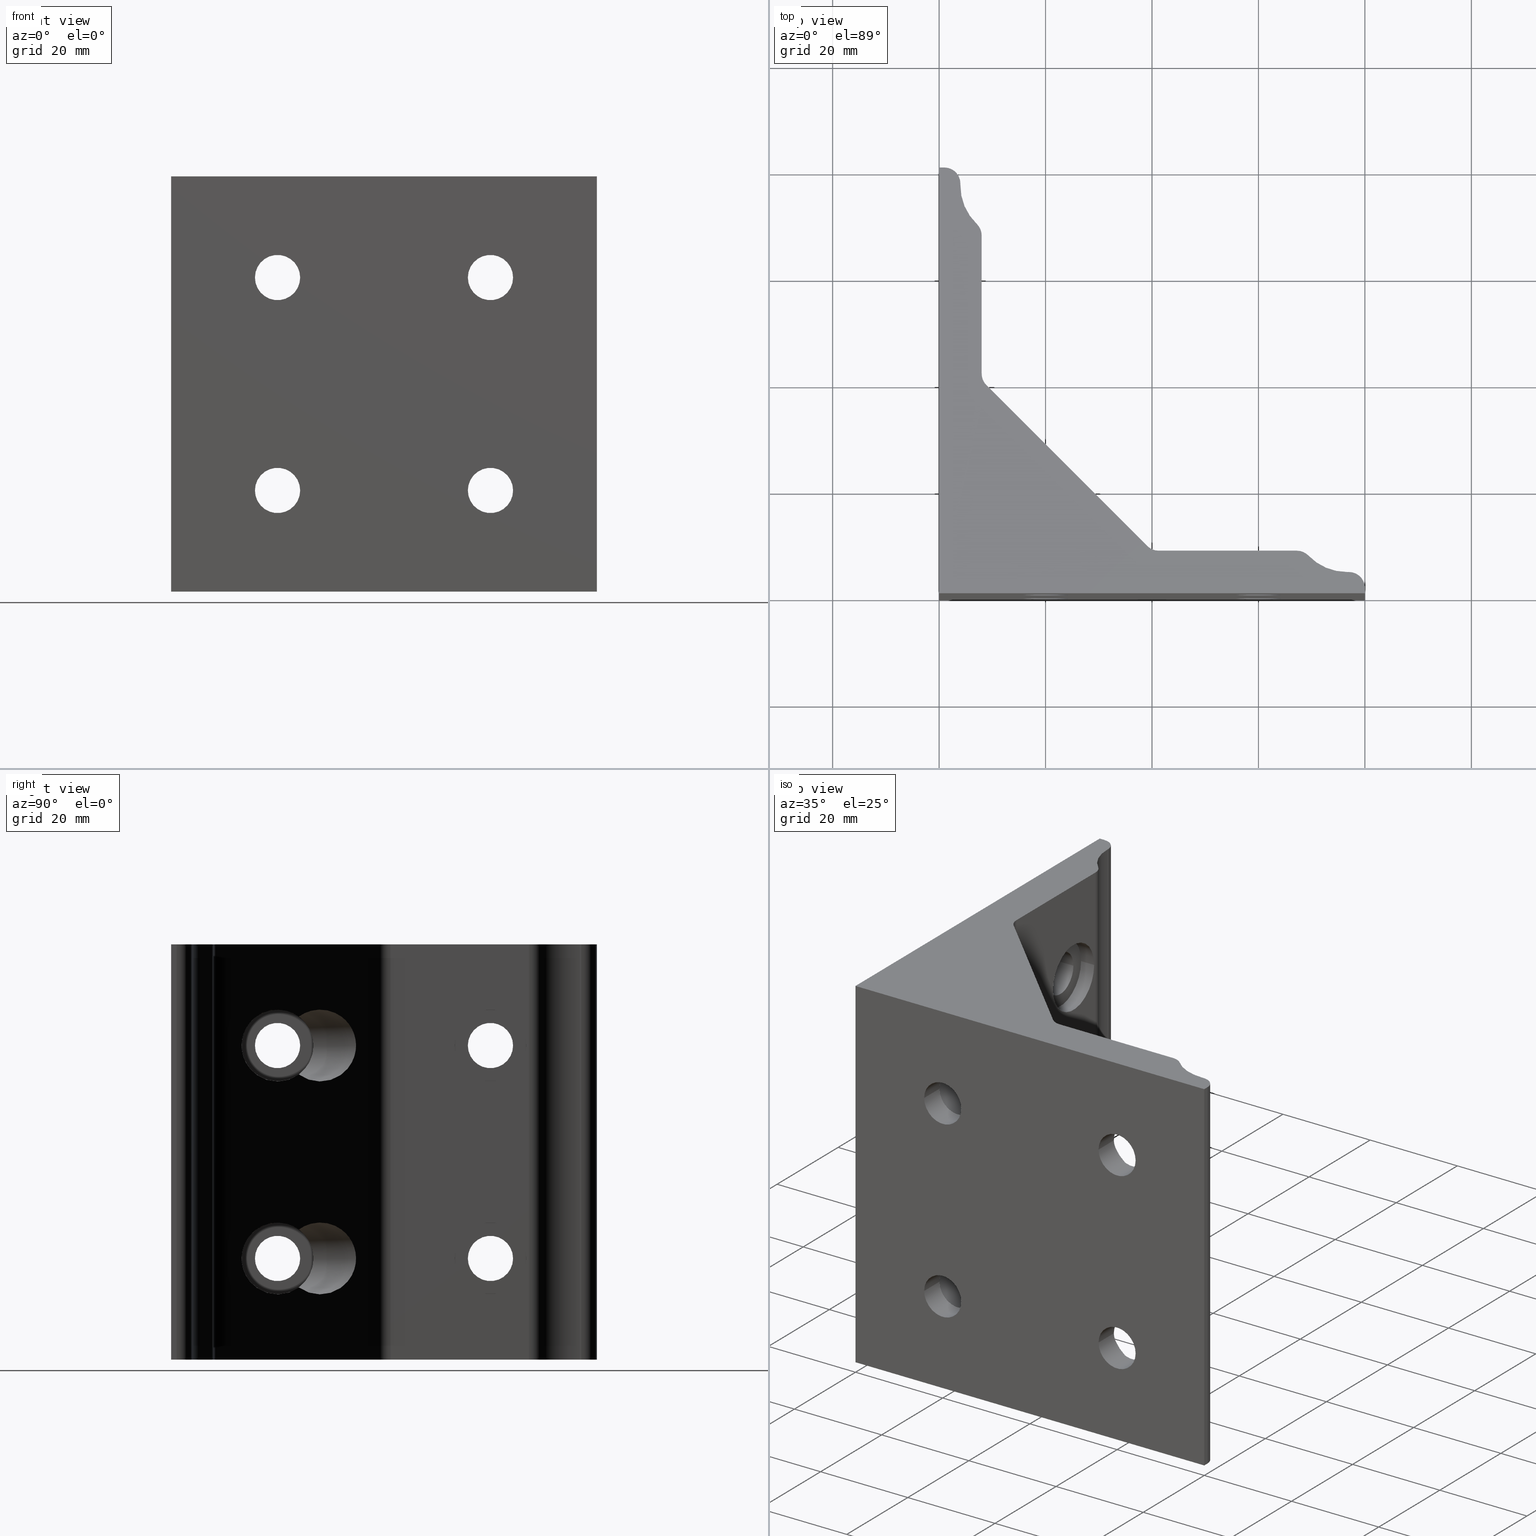
[diagram: canonical four-view strip — front | top / right | iso, engineering-drawing reading convention]
A machine part, canonical four-view strip (front | top / right | iso — engineering-drawing reading convention). The complete STEP part file that produces these views, byte-faithful:
ISO-10303-21;
HEADER;
/* Generated by software containing ST-Developer
 * from STEP Tools, Inc. (www.steptools.com) 
 */

FILE_DESCRIPTION(
/* description */ ('SQUADRETTA 80x80x80'),
/* implementation_level */ '2;1');

FILE_NAME(
/* name */ 'C:\\Users\\tecnico7\\Desktop\\DSQAL0000044.stp',
/* time_stamp */ '2022-07-07T09:01:57+02:00',
/* author */ ('tecnico7'),
/* organization */ (''),
/* preprocessor_version */ 'ST-DEVELOPER v18.1',
/* originating_system */ 'Autodesk Inventor 2022',
/* authorisation */ '');

FILE_SCHEMA (('AUTOMOTIVE_DESIGN { 1 0 10303 214 3 1 1 }'));
ENDSEC;

DATA;
#10=MECHANICAL_DESIGN_GEOMETRIC_PRESENTATION_REPRESENTATION('',(#13),#1465);
#11=SHAPE_REPRESENTATION_RELATIONSHIP('SRR','None',#1472,#12);
#12=ADVANCED_BREP_SHAPE_REPRESENTATION('',(#14),#1464);
#13=STYLED_ITEM('',(#1481),#14);
#14=MANIFOLD_SOLID_BREP('None',#824);
#15=ELLIPSE('',#861,9.54593943385778,6.74999850647282);
#16=ELLIPSE('',#862,9.54593942677539,6.74999850147299);
#17=ELLIPSE('',#863,9.54593943385778,6.74999850647282);
#18=ELLIPSE('',#864,9.54593942677539,6.74999850147299);
#19=ELLIPSE('',#911,9.54593943031658,6.74999850147299);
#20=ELLIPSE('',#912,9.54593943031658,6.74999850147299);
#21=ELLIPSE('',#913,9.54593943031658,6.74999850147299);
#22=ELLIPSE('',#915,9.54593943031658,6.74999850147299);
#23=ELLIPSE('',#916,9.54593943031658,6.74999850147299);
#24=ELLIPSE('',#917,9.54593943031658,6.74999850147299);
#25=ELLIPSE('',#918,9.54593943031658,6.74999850147299);
#26=ELLIPSE('',#924,9.54593943031658,6.74999850147299);
#27=ELLIPSE('',#925,9.54593943031658,6.74999850147299);
#28=ELLIPSE('',#926,9.54593943031658,6.74999850147299);
#29=ELLIPSE('',#928,9.54593943031658,6.74999850147299);
#30=ELLIPSE('',#929,9.54593943031658,6.74999850147299);
#31=ELLIPSE('',#930,9.54593943031658,6.74999850147299);
#32=ELLIPSE('',#931,9.54593943031658,6.74999850147299);
#33=FACE_BOUND('',#178,.T.);
#34=FACE_BOUND('',#179,.T.);
#35=FACE_BOUND('',#182,.T.);
#36=FACE_BOUND('',#183,.T.);
#37=FACE_BOUND('',#186,.T.);
#38=FACE_BOUND('',#187,.T.);
#39=FACE_BOUND('',#194,.T.);
#40=FACE_BOUND('',#195,.T.);
#41=FACE_BOUND('',#196,.T.);
#42=FACE_BOUND('',#197,.T.);
#43=FACE_BOUND('',#199,.T.);
#44=FACE_BOUND('',#200,.T.);
#45=FACE_BOUND('',#201,.T.);
#46=FACE_BOUND('',#202,.T.);
#47=FACE_BOUND('',#208,.T.);
#48=FACE_BOUND('',#212,.T.);
#49=FACE_BOUND('',#215,.T.);
#50=FACE_BOUND('',#220,.T.);
#51=FACE_BOUND('',#226,.T.);
#52=FACE_BOUND('',#231,.T.);
#53=FACE_BOUND('',#236,.T.);
#54=FACE_BOUND('',#240,.T.);
#55=CIRCLE('',#849,9.9999977120583);
#56=CIRCLE('',#850,9.9999977120583);
#57=CIRCLE('',#852,2.99999932597575);
#58=CIRCLE('',#853,2.99999932597575);
#59=CIRCLE('',#855,6.7499985014731);
#60=CIRCLE('',#856,6.7499985014731);
#61=CIRCLE('',#858,2.99999931386152);
#62=CIRCLE('',#859,2.99999931386152);
#63=CIRCLE('',#866,2.99999934041716);
#64=CIRCLE('',#867,2.99999934041716);
#65=CIRCLE('',#869,6.74999850147287);
#66=CIRCLE('',#870,6.74999850147287);
#67=CIRCLE('',#872,2.9999992689053);
#68=CIRCLE('',#873,2.9999992689053);
#69=CIRCLE('',#875,10.0018587542886);
#70=CIRCLE('',#876,10.0018587542886);
#71=CIRCLE('',#879,2.99999933691197);
#72=CIRCLE('',#880,2.99999933691197);
#73=CIRCLE('',#883,4.24999905648292);
#74=CIRCLE('',#884,4.24999905648292);
#75=CIRCLE('',#885,4.24999905648292);
#76=CIRCLE('',#886,4.24999905648292);
#77=CIRCLE('',#888,4.24999905648303);
#78=CIRCLE('',#889,4.24999905648303);
#79=CIRCLE('',#890,4.24999905648303);
#80=CIRCLE('',#891,4.24999905648303);
#81=CIRCLE('',#894,2.99999934797051);
#82=CIRCLE('',#895,2.99999934797051);
#83=CIRCLE('',#898,4.24999905648303);
#84=CIRCLE('',#900,6.7499985014731);
#85=CIRCLE('',#903,4.24999905648303);
#86=CIRCLE('',#905,6.7499985014731);
#87=CIRCLE('',#908,6.74999850147299);
#88=CIRCLE('',#909,4.24999905648303);
#89=CIRCLE('',#921,6.74999850147299);
#90=CIRCLE('',#922,4.24999905648303);
#91=CIRCLE('',#934,4.24999905648292);
#92=CIRCLE('',#936,6.74999850647282);
#93=CIRCLE('',#940,4.24999905648292);
#94=CIRCLE('',#942,6.74999850647282);
#95=CIRCLE('',#946,4.24999905648292);
#96=CIRCLE('',#948,6.74999850147287);
#97=CIRCLE('',#951,4.24999905648292);
#98=CIRCLE('',#953,6.74999850147287);
#99=CYLINDRICAL_SURFACE('',#848,9.9999977120583);
#100=CYLINDRICAL_SURFACE('',#851,2.99999932597575);
#101=CYLINDRICAL_SURFACE('',#857,2.99999931386152);
#102=CYLINDRICAL_SURFACE('',#865,2.99999934041716);
#103=CYLINDRICAL_SURFACE('',#871,2.9999992689053);
#104=CYLINDRICAL_SURFACE('',#874,10.0018587542886);
#105=CYLINDRICAL_SURFACE('',#878,2.99999933691197);
#106=CYLINDRICAL_SURFACE('',#893,2.99999934797051);
#107=CYLINDRICAL_SURFACE('',#897,4.24999905648303);
#108=CYLINDRICAL_SURFACE('',#901,6.7499985014731);
#109=CYLINDRICAL_SURFACE('',#902,4.24999905648303);
#110=CYLINDRICAL_SURFACE('',#906,6.7499985014731);
#111=CYLINDRICAL_SURFACE('',#910,6.74999850147299);
#112=CYLINDRICAL_SURFACE('',#914,6.74999850147299);
#113=CYLINDRICAL_SURFACE('',#919,4.24999905648303);
#114=CYLINDRICAL_SURFACE('',#923,6.74999850147299);
#115=CYLINDRICAL_SURFACE('',#927,6.74999850147299);
#116=CYLINDRICAL_SURFACE('',#932,4.24999905648303);
#117=CYLINDRICAL_SURFACE('',#933,4.24999905648292);
#118=CYLINDRICAL_SURFACE('',#937,6.74999850647282);
#119=CYLINDRICAL_SURFACE('',#938,6.74999850647282);
#120=CYLINDRICAL_SURFACE('',#939,4.24999905648292);
#121=CYLINDRICAL_SURFACE('',#943,6.74999850647282);
#122=CYLINDRICAL_SURFACE('',#944,6.74999850647282);
#123=CYLINDRICAL_SURFACE('',#945,4.24999905648292);
#124=CYLINDRICAL_SURFACE('',#949,6.74999850147287);
#125=CYLINDRICAL_SURFACE('',#950,4.24999905648292);
#126=CYLINDRICAL_SURFACE('',#954,6.74999850147287);
#127=FACE_OUTER_BOUND('',#174,.T.);
#128=FACE_OUTER_BOUND('',#175,.T.);
#129=FACE_OUTER_BOUND('',#176,.T.);
#130=FACE_OUTER_BOUND('',#177,.T.);
#131=FACE_OUTER_BOUND('',#180,.T.);
#132=FACE_OUTER_BOUND('',#181,.T.);
#133=FACE_OUTER_BOUND('',#184,.T.);
#134=FACE_OUTER_BOUND('',#185,.T.);
#135=FACE_OUTER_BOUND('',#188,.T.);
#136=FACE_OUTER_BOUND('',#189,.T.);
#137=FACE_OUTER_BOUND('',#190,.T.);
#138=FACE_OUTER_BOUND('',#191,.T.);
#139=FACE_OUTER_BOUND('',#192,.T.);
#140=FACE_OUTER_BOUND('',#193,.T.);
#141=FACE_OUTER_BOUND('',#198,.T.);
#142=FACE_OUTER_BOUND('',#203,.T.);
#143=FACE_OUTER_BOUND('',#204,.T.);
#144=FACE_OUTER_BOUND('',#205,.T.);
#145=FACE_OUTER_BOUND('',#206,.T.);
#146=FACE_OUTER_BOUND('',#207,.T.);
#147=FACE_OUTER_BOUND('',#209,.T.);
#148=FACE_OUTER_BOUND('',#210,.T.);
#149=FACE_OUTER_BOUND('',#211,.T.);
#150=FACE_OUTER_BOUND('',#213,.T.);
#151=FACE_OUTER_BOUND('',#214,.T.);
#152=FACE_OUTER_BOUND('',#216,.T.);
#153=FACE_OUTER_BOUND('',#217,.T.);
#154=FACE_OUTER_BOUND('',#218,.T.);
#155=FACE_OUTER_BOUND('',#219,.T.);
#156=FACE_OUTER_BOUND('',#221,.T.);
#157=FACE_OUTER_BOUND('',#222,.T.);
#158=FACE_OUTER_BOUND('',#223,.T.);
#159=FACE_OUTER_BOUND('',#224,.T.);
#160=FACE_OUTER_BOUND('',#225,.T.);
#161=FACE_OUTER_BOUND('',#227,.T.);
#162=FACE_OUTER_BOUND('',#228,.T.);
#163=FACE_OUTER_BOUND('',#229,.T.);
#164=FACE_OUTER_BOUND('',#230,.T.);
#165=FACE_OUTER_BOUND('',#232,.T.);
#166=FACE_OUTER_BOUND('',#233,.T.);
#167=FACE_OUTER_BOUND('',#234,.T.);
#168=FACE_OUTER_BOUND('',#235,.T.);
#169=FACE_OUTER_BOUND('',#237,.T.);
#170=FACE_OUTER_BOUND('',#238,.T.);
#171=FACE_OUTER_BOUND('',#239,.T.);
#172=FACE_OUTER_BOUND('',#241,.T.);
#173=FACE_OUTER_BOUND('',#242,.T.);
#174=EDGE_LOOP('',(#532,#533,#534,#535));
#175=EDGE_LOOP('',(#536,#537,#538,#539));
#176=EDGE_LOOP('',(#540,#541,#542,#543));
#177=EDGE_LOOP('',(#544,#545,#546,#547));
#178=EDGE_LOOP('',(#548));
#179=EDGE_LOOP('',(#549));
#180=EDGE_LOOP('',(#550,#551,#552,#553));
#181=EDGE_LOOP('',(#554,#555,#556,#557));
#182=EDGE_LOOP('',(#558,#559));
#183=EDGE_LOOP('',(#560,#561));
#184=EDGE_LOOP('',(#562,#563,#564,#565));
#185=EDGE_LOOP('',(#566,#567,#568,#569));
#186=EDGE_LOOP('',(#570));
#187=EDGE_LOOP('',(#571));
#188=EDGE_LOOP('',(#572,#573,#574,#575));
#189=EDGE_LOOP('',(#576,#577,#578,#579));
#190=EDGE_LOOP('',(#580,#581,#582,#583));
#191=EDGE_LOOP('',(#584,#585,#586,#587));
#192=EDGE_LOOP('',(#588,#589,#590,#591));
#193=EDGE_LOOP('',(#592,#593,#594,#595));
#194=EDGE_LOOP('',(#596));
#195=EDGE_LOOP('',(#597));
#196=EDGE_LOOP('',(#598));
#197=EDGE_LOOP('',(#599));
#198=EDGE_LOOP('',(#600,#601,#602,#603));
#199=EDGE_LOOP('',(#604));
#200=EDGE_LOOP('',(#605));
#201=EDGE_LOOP('',(#606));
#202=EDGE_LOOP('',(#607));
#203=EDGE_LOOP('',(#608,#609,#610,#611));
#204=EDGE_LOOP('',(#612,#613,#614,#615));
#205=EDGE_LOOP('',(#616,#617,#618,#619,#620,#621,#622,#623,#624,#625,#626,
#627,#628,#629,#630,#631,#632));
#206=EDGE_LOOP('',(#633,#634,#635,#636));
#207=EDGE_LOOP('',(#637));
#208=EDGE_LOOP('',(#638));
#209=EDGE_LOOP('',(#639,#640,#641,#642));
#210=EDGE_LOOP('',(#643,#644,#645,#646));
#211=EDGE_LOOP('',(#647));
#212=EDGE_LOOP('',(#648));
#213=EDGE_LOOP('',(#649,#650,#651,#652));
#214=EDGE_LOOP('',(#653));
#215=EDGE_LOOP('',(#654));
#216=EDGE_LOOP('',(#655,#656,#657,#658,#659,#660));
#217=EDGE_LOOP('',(#661,#662,#663,#664,#665));
#218=EDGE_LOOP('',(#666,#667,#668,#669));
#219=EDGE_LOOP('',(#670));
#220=EDGE_LOOP('',(#671));
#221=EDGE_LOOP('',(#672,#673,#674,#675,#676,#677));
#222=EDGE_LOOP('',(#678,#679,#680,#681,#682));
#223=EDGE_LOOP('',(#683,#684,#685,#686));
#224=EDGE_LOOP('',(#687,#688,#689,#690));
#225=EDGE_LOOP('',(#691));
#226=EDGE_LOOP('',(#692));
#227=EDGE_LOOP('',(#693,#694,#695,#696,#697,#698,#699));
#228=EDGE_LOOP('',(#700,#701,#702,#703));
#229=EDGE_LOOP('',(#704,#705,#706,#707));
#230=EDGE_LOOP('',(#708));
#231=EDGE_LOOP('',(#709));
#232=EDGE_LOOP('',(#710,#711,#712,#713,#714,#715,#716));
#233=EDGE_LOOP('',(#717,#718,#719,#720));
#234=EDGE_LOOP('',(#721,#722,#723,#724));
#235=EDGE_LOOP('',(#725));
#236=EDGE_LOOP('',(#726));
#237=EDGE_LOOP('',(#727,#728,#729,#730));
#238=EDGE_LOOP('',(#731,#732,#733,#734));
#239=EDGE_LOOP('',(#735));
#240=EDGE_LOOP('',(#736));
#241=EDGE_LOOP('',(#737,#738,#739,#740));
#242=EDGE_LOOP('',(#741,#742,#743,#744,#745,#746,#747,#748,#749,#750,#751,
#752,#753,#754,#755,#756,#757));
#243=LINE('',#1231,#294);
#244=LINE('',#1233,#295);
#245=LINE('',#1235,#296);
#246=LINE('',#1236,#297);
#247=LINE('',#1241,#298);
#248=LINE('',#1247,#299);
#249=LINE('',#1251,#300);
#250=LINE('',#1253,#301);
#251=LINE('',#1254,#302);
#252=LINE('',#1263,#303);
#253=LINE('',#1267,#304);
#254=LINE('',#1269,#305);
#255=LINE('',#1270,#306);
#256=LINE('',#1283,#307);
#257=LINE('',#1287,#308);
#258=LINE('',#1289,#309);
#259=LINE('',#1290,#310);
#260=LINE('',#1299,#311);
#261=LINE('',#1305,#312);
#262=LINE('',#1309,#313);
#263=LINE('',#1311,#314);
#264=LINE('',#1312,#315);
#265=LINE('',#1317,#316);
#266=LINE('',#1321,#317);
#267=LINE('',#1323,#318);
#268=LINE('',#1324,#319);
#269=LINE('',#1327,#320);
#270=LINE('',#1329,#321);
#271=LINE('',#1330,#322);
#272=LINE('',#1341,#323);
#273=LINE('',#1343,#324);
#274=LINE('',#1344,#325);
#275=LINE('',#1355,#326);
#276=LINE('',#1357,#327);
#277=LINE('',#1358,#328);
#278=LINE('',#1365,#329);
#279=LINE('',#1371,#330);
#280=LINE('',#1374,#331);
#281=LINE('',#1380,#332);
#282=LINE('',#1388,#333);
#283=LINE('',#1401,#334);
#284=LINE('',#1409,#335);
#285=LINE('',#1422,#336);
#286=LINE('',#1426,#337);
#287=LINE('',#1431,#338);
#288=LINE('',#1436,#339);
#289=LINE('',#1441,#340);
#290=LINE('',#1446,#341);
#291=LINE('',#1451,#342);
#292=LINE('',#1455,#343);
#293=LINE('',#1460,#344);
#294=VECTOR('',#960,78.);
#295=VECTOR('',#961,0.385823411633615);
#296=VECTOR('',#962,78.);
#297=VECTOR('',#963,0.385823411633615);
#298=VECTOR('',#968,78.);
#299=VECTOR('',#975,78.);
#300=VECTOR('',#980,25.986605231272);
#301=VECTOR('',#981,78.);
#302=VECTOR('',#982,25.986605231272);
#303=VECTOR('',#991,78.);
#304=VECTOR('',#996,42.7695431182399);
#305=VECTOR('',#997,78.);
#306=VECTOR('',#998,42.7695431182399);
#307=VECTOR('',#1011,78.);
#308=VECTOR('',#1016,25.9866052446087);
#309=VECTOR('',#1017,78.);
#310=VECTOR('',#1018,25.9866052446087);
#311=VECTOR('',#1027,78.);
#312=VECTOR('',#1034,78.);
#313=VECTOR('',#1039,0.193682960054034);
#314=VECTOR('',#1040,78.);
#315=VECTOR('',#1041,0.193682960054034);
#316=VECTOR('',#1046,78.);
#317=VECTOR('',#1051,0.999253008161645);
#318=VECTOR('',#1052,78.);
#319=VECTOR('',#1053,0.999253008161645);
#320=VECTOR('',#1056,79.9999822396803);
#321=VECTOR('',#1057,78.);
#322=VECTOR('',#1058,79.9999822396803);
#323=VECTOR('',#1069,79.9974926075425);
#324=VECTOR('',#1070,78.);
#325=VECTOR('',#1071,79.9974926075425);
#326=VECTOR('',#1082,0.999156630858579);
#327=VECTOR('',#1083,78.);
#328=VECTOR('',#1084,0.999156630858579);
#329=VECTOR('',#1095,4.24999905648303);
#330=VECTOR('',#1104,6.7499985014731);
#331=VECTOR('',#1107,4.24999905648303);
#332=VECTOR('',#1116,6.7499985014731);
#333=VECTOR('',#1125,6.74999850147299);
#334=VECTOR('',#1144,4.24999905648303);
#335=VECTOR('',#1153,6.74999850147299);
#336=VECTOR('',#1172,4.24999905648303);
#337=VECTOR('',#1177,4.24999905648292);
#338=VECTOR('',#1184,6.74999850647282);
#339=VECTOR('',#1191,4.24999905648292);
#340=VECTOR('',#1198,6.74999850647282);
#341=VECTOR('',#1205,4.24999905648292);
#342=VECTOR('',#1212,6.74999850147287);
#343=VECTOR('',#1217,4.24999905648292);
#344=VECTOR('',#1224,6.74999850147287);
#345=VERTEX_POINT('',#1229);
#346=VERTEX_POINT('',#1230);
#347=VERTEX_POINT('',#1232);
#348=VERTEX_POINT('',#1234);
#349=VERTEX_POINT('',#1238);
#350=VERTEX_POINT('',#1240);
#351=VERTEX_POINT('',#1244);
#352=VERTEX_POINT('',#1246);
#353=VERTEX_POINT('',#1250);
#354=VERTEX_POINT('',#1252);
#355=VERTEX_POINT('',#1255);
#356=VERTEX_POINT('',#1257);
#357=VERTEX_POINT('',#1260);
#358=VERTEX_POINT('',#1262);
#359=VERTEX_POINT('',#1266);
#360=VERTEX_POINT('',#1268);
#361=VERTEX_POINT('',#1271);
#362=VERTEX_POINT('',#1272);
#363=VERTEX_POINT('',#1275);
#364=VERTEX_POINT('',#1276);
#365=VERTEX_POINT('',#1280);
#366=VERTEX_POINT('',#1282);
#367=VERTEX_POINT('',#1286);
#368=VERTEX_POINT('',#1288);
#369=VERTEX_POINT('',#1291);
#370=VERTEX_POINT('',#1293);
#371=VERTEX_POINT('',#1296);
#372=VERTEX_POINT('',#1298);
#373=VERTEX_POINT('',#1302);
#374=VERTEX_POINT('',#1304);
#375=VERTEX_POINT('',#1308);
#376=VERTEX_POINT('',#1310);
#377=VERTEX_POINT('',#1314);
#378=VERTEX_POINT('',#1316);
#379=VERTEX_POINT('',#1320);
#380=VERTEX_POINT('',#1322);
#381=VERTEX_POINT('',#1326);
#382=VERTEX_POINT('',#1328);
#383=VERTEX_POINT('',#1331);
#384=VERTEX_POINT('',#1333);
#385=VERTEX_POINT('',#1335);
#386=VERTEX_POINT('',#1337);
#387=VERTEX_POINT('',#1340);
#388=VERTEX_POINT('',#1342);
#389=VERTEX_POINT('',#1345);
#390=VERTEX_POINT('',#1347);
#391=VERTEX_POINT('',#1349);
#392=VERTEX_POINT('',#1351);
#393=VERTEX_POINT('',#1354);
#394=VERTEX_POINT('',#1356);
#395=VERTEX_POINT('',#1364);
#396=VERTEX_POINT('',#1368);
#397=VERTEX_POINT('',#1373);
#398=VERTEX_POINT('',#1377);
#399=VERTEX_POINT('',#1382);
#400=VERTEX_POINT('',#1384);
#401=VERTEX_POINT('',#1387);
#402=VERTEX_POINT('',#1389);
#403=VERTEX_POINT('',#1391);
#404=VERTEX_POINT('',#1396);
#405=VERTEX_POINT('',#1403);
#406=VERTEX_POINT('',#1405);
#407=VERTEX_POINT('',#1408);
#408=VERTEX_POINT('',#1410);
#409=VERTEX_POINT('',#1412);
#410=VERTEX_POINT('',#1417);
#411=VERTEX_POINT('',#1424);
#412=VERTEX_POINT('',#1428);
#413=VERTEX_POINT('',#1434);
#414=VERTEX_POINT('',#1438);
#415=VERTEX_POINT('',#1444);
#416=VERTEX_POINT('',#1448);
#417=VERTEX_POINT('',#1453);
#418=VERTEX_POINT('',#1457);
#419=EDGE_CURVE('',#345,#346,#243,.T.);
#420=EDGE_CURVE('',#345,#347,#244,.T.);
#421=EDGE_CURVE('',#347,#348,#245,.T.);
#422=EDGE_CURVE('',#346,#348,#246,.T.);
#423=EDGE_CURVE('',#347,#349,#55,.T.);
#424=EDGE_CURVE('',#349,#350,#247,.T.);
#425=EDGE_CURVE('',#348,#350,#56,.T.);
#426=EDGE_CURVE('',#349,#351,#57,.T.);
#427=EDGE_CURVE('',#351,#352,#248,.T.);
#428=EDGE_CURVE('',#350,#352,#58,.T.);
#429=EDGE_CURVE('',#351,#353,#249,.T.);
#430=EDGE_CURVE('',#353,#354,#250,.T.);
#431=EDGE_CURVE('',#352,#354,#251,.T.);
#432=EDGE_CURVE('',#355,#355,#59,.T.);
#433=EDGE_CURVE('',#356,#356,#60,.T.);
#434=EDGE_CURVE('',#353,#357,#61,.T.);
#435=EDGE_CURVE('',#357,#358,#252,.T.);
#436=EDGE_CURVE('',#354,#358,#62,.T.);
#437=EDGE_CURVE('',#357,#359,#253,.T.);
#438=EDGE_CURVE('',#359,#360,#254,.T.);
#439=EDGE_CURVE('',#358,#360,#255,.T.);
#440=EDGE_CURVE('',#361,#362,#15,.T.);
#441=EDGE_CURVE('',#361,#362,#16,.T.);
#442=EDGE_CURVE('',#363,#364,#17,.T.);
#443=EDGE_CURVE('',#363,#364,#18,.T.);
#444=EDGE_CURVE('',#359,#365,#63,.T.);
#445=EDGE_CURVE('',#365,#366,#256,.T.);
#446=EDGE_CURVE('',#360,#366,#64,.T.);
#447=EDGE_CURVE('',#365,#367,#257,.T.);
#448=EDGE_CURVE('',#367,#368,#258,.T.);
#449=EDGE_CURVE('',#366,#368,#259,.T.);
#450=EDGE_CURVE('',#369,#369,#65,.T.);
#451=EDGE_CURVE('',#370,#370,#66,.T.);
#452=EDGE_CURVE('',#367,#371,#67,.T.);
#453=EDGE_CURVE('',#371,#372,#260,.T.);
#454=EDGE_CURVE('',#368,#372,#68,.T.);
#455=EDGE_CURVE('',#371,#373,#69,.T.);
#456=EDGE_CURVE('',#373,#374,#261,.T.);
#457=EDGE_CURVE('',#372,#374,#70,.T.);
#458=EDGE_CURVE('',#373,#375,#262,.T.);
#459=EDGE_CURVE('',#375,#376,#263,.T.);
#460=EDGE_CURVE('',#374,#376,#264,.T.);
#461=EDGE_CURVE('',#375,#377,#71,.T.);
#462=EDGE_CURVE('',#377,#378,#265,.T.);
#463=EDGE_CURVE('',#376,#378,#72,.T.);
#464=EDGE_CURVE('',#379,#377,#266,.T.);
#465=EDGE_CURVE('',#379,#380,#267,.T.);
#466=EDGE_CURVE('',#378,#380,#268,.T.);
#467=EDGE_CURVE('',#381,#379,#269,.T.);
#468=EDGE_CURVE('',#381,#382,#270,.T.);
#469=EDGE_CURVE('',#380,#382,#271,.T.);
#470=EDGE_CURVE('',#383,#383,#73,.T.);
#471=EDGE_CURVE('',#384,#384,#74,.T.);
#472=EDGE_CURVE('',#385,#385,#75,.T.);
#473=EDGE_CURVE('',#386,#386,#76,.T.);
#474=EDGE_CURVE('',#381,#387,#272,.T.);
#475=EDGE_CURVE('',#387,#388,#273,.T.);
#476=EDGE_CURVE('',#382,#388,#274,.T.);
#477=EDGE_CURVE('',#389,#389,#77,.T.);
#478=EDGE_CURVE('',#390,#390,#78,.T.);
#479=EDGE_CURVE('',#391,#391,#79,.T.);
#480=EDGE_CURVE('',#392,#392,#80,.T.);
#481=EDGE_CURVE('',#387,#393,#275,.T.);
#482=EDGE_CURVE('',#393,#394,#276,.T.);
#483=EDGE_CURVE('',#388,#394,#277,.T.);
#484=EDGE_CURVE('',#394,#346,#81,.T.);
#485=EDGE_CURVE('',#393,#345,#82,.T.);
#486=EDGE_CURVE('',#389,#395,#278,.T.);
#487=EDGE_CURVE('',#395,#395,#83,.T.);
#488=EDGE_CURVE('',#396,#396,#84,.T.);
#489=EDGE_CURVE('',#396,#355,#279,.T.);
#490=EDGE_CURVE('',#390,#397,#280,.T.);
#491=EDGE_CURVE('',#397,#397,#85,.T.);
#492=EDGE_CURVE('',#398,#398,#86,.T.);
#493=EDGE_CURVE('',#398,#356,#281,.T.);
#494=EDGE_CURVE('',#399,#399,#87,.T.);
#495=EDGE_CURVE('',#400,#400,#88,.T.);
#496=EDGE_CURVE('',#399,#401,#282,.T.);
#497=EDGE_CURVE('',#402,#401,#19,.T.);
#498=EDGE_CURVE('',#402,#403,#20,.T.);
#499=EDGE_CURVE('',#401,#403,#21,.T.);
#500=EDGE_CURVE('',#362,#402,#22,.T.);
#501=EDGE_CURVE('',#404,#402,#23,.T.);
#502=EDGE_CURVE('',#403,#404,#24,.T.);
#503=EDGE_CURVE('',#403,#361,#25,.T.);
#504=EDGE_CURVE('',#391,#400,#283,.T.);
#505=EDGE_CURVE('',#405,#405,#89,.T.);
#506=EDGE_CURVE('',#406,#406,#90,.T.);
#507=EDGE_CURVE('',#405,#407,#284,.T.);
#508=EDGE_CURVE('',#408,#407,#26,.T.);
#509=EDGE_CURVE('',#408,#409,#27,.T.);
#510=EDGE_CURVE('',#407,#409,#28,.T.);
#511=EDGE_CURVE('',#364,#408,#29,.T.);
#512=EDGE_CURVE('',#410,#408,#30,.T.);
#513=EDGE_CURVE('',#409,#410,#31,.T.);
#514=EDGE_CURVE('',#409,#363,#32,.T.);
#515=EDGE_CURVE('',#392,#406,#285,.T.);
#516=EDGE_CURVE('',#411,#411,#91,.T.);
#517=EDGE_CURVE('',#411,#383,#286,.T.);
#518=EDGE_CURVE('',#412,#412,#92,.T.);
#519=EDGE_CURVE('',#404,#412,#287,.T.);
#520=EDGE_CURVE('',#413,#413,#93,.T.);
#521=EDGE_CURVE('',#413,#384,#288,.T.);
#522=EDGE_CURVE('',#414,#414,#94,.T.);
#523=EDGE_CURVE('',#410,#414,#289,.T.);
#524=EDGE_CURVE('',#415,#415,#95,.T.);
#525=EDGE_CURVE('',#415,#385,#290,.T.);
#526=EDGE_CURVE('',#416,#416,#96,.T.);
#527=EDGE_CURVE('',#369,#416,#291,.T.);
#528=EDGE_CURVE('',#417,#417,#97,.T.);
#529=EDGE_CURVE('',#417,#386,#292,.T.);
#530=EDGE_CURVE('',#418,#418,#98,.T.);
#531=EDGE_CURVE('',#370,#418,#293,.T.);
#532=ORIENTED_EDGE('',*,*,#419,.F.);
#533=ORIENTED_EDGE('',*,*,#420,.T.);
#534=ORIENTED_EDGE('',*,*,#421,.T.);
#535=ORIENTED_EDGE('',*,*,#422,.F.);
#536=ORIENTED_EDGE('',*,*,#421,.F.);
#537=ORIENTED_EDGE('',*,*,#423,.T.);
#538=ORIENTED_EDGE('',*,*,#424,.T.);
#539=ORIENTED_EDGE('',*,*,#425,.F.);
#540=ORIENTED_EDGE('',*,*,#424,.F.);
#541=ORIENTED_EDGE('',*,*,#426,.T.);
#542=ORIENTED_EDGE('',*,*,#427,.T.);
#543=ORIENTED_EDGE('',*,*,#428,.F.);
#544=ORIENTED_EDGE('',*,*,#427,.F.);
#545=ORIENTED_EDGE('',*,*,#429,.T.);
#546=ORIENTED_EDGE('',*,*,#430,.T.);
#547=ORIENTED_EDGE('',*,*,#431,.F.);
#548=ORIENTED_EDGE('',*,*,#432,.F.);
#549=ORIENTED_EDGE('',*,*,#433,.F.);
#550=ORIENTED_EDGE('',*,*,#430,.F.);
#551=ORIENTED_EDGE('',*,*,#434,.T.);
#552=ORIENTED_EDGE('',*,*,#435,.T.);
#553=ORIENTED_EDGE('',*,*,#436,.F.);
#554=ORIENTED_EDGE('',*,*,#435,.F.);
#555=ORIENTED_EDGE('',*,*,#437,.T.);
#556=ORIENTED_EDGE('',*,*,#438,.T.);
#557=ORIENTED_EDGE('',*,*,#439,.F.);
#558=ORIENTED_EDGE('',*,*,#440,.T.);
#559=ORIENTED_EDGE('',*,*,#441,.F.);
#560=ORIENTED_EDGE('',*,*,#442,.T.);
#561=ORIENTED_EDGE('',*,*,#443,.F.);
#562=ORIENTED_EDGE('',*,*,#438,.F.);
#563=ORIENTED_EDGE('',*,*,#444,.T.);
#564=ORIENTED_EDGE('',*,*,#445,.T.);
#565=ORIENTED_EDGE('',*,*,#446,.F.);
#566=ORIENTED_EDGE('',*,*,#445,.F.);
#567=ORIENTED_EDGE('',*,*,#447,.T.);
#568=ORIENTED_EDGE('',*,*,#448,.T.);
#569=ORIENTED_EDGE('',*,*,#449,.F.);
#570=ORIENTED_EDGE('',*,*,#450,.T.);
#571=ORIENTED_EDGE('',*,*,#451,.T.);
#572=ORIENTED_EDGE('',*,*,#448,.F.);
#573=ORIENTED_EDGE('',*,*,#452,.T.);
#574=ORIENTED_EDGE('',*,*,#453,.T.);
#575=ORIENTED_EDGE('',*,*,#454,.F.);
#576=ORIENTED_EDGE('',*,*,#453,.F.);
#577=ORIENTED_EDGE('',*,*,#455,.T.);
#578=ORIENTED_EDGE('',*,*,#456,.T.);
#579=ORIENTED_EDGE('',*,*,#457,.F.);
#580=ORIENTED_EDGE('',*,*,#456,.F.);
#581=ORIENTED_EDGE('',*,*,#458,.T.);
#582=ORIENTED_EDGE('',*,*,#459,.T.);
#583=ORIENTED_EDGE('',*,*,#460,.F.);
#584=ORIENTED_EDGE('',*,*,#459,.F.);
#585=ORIENTED_EDGE('',*,*,#461,.T.);
#586=ORIENTED_EDGE('',*,*,#462,.T.);
#587=ORIENTED_EDGE('',*,*,#463,.F.);
#588=ORIENTED_EDGE('',*,*,#462,.F.);
#589=ORIENTED_EDGE('',*,*,#464,.F.);
#590=ORIENTED_EDGE('',*,*,#465,.T.);
#591=ORIENTED_EDGE('',*,*,#466,.F.);
#592=ORIENTED_EDGE('',*,*,#465,.F.);
#593=ORIENTED_EDGE('',*,*,#467,.F.);
#594=ORIENTED_EDGE('',*,*,#468,.T.);
#595=ORIENTED_EDGE('',*,*,#469,.F.);
#596=ORIENTED_EDGE('',*,*,#470,.T.);
#597=ORIENTED_EDGE('',*,*,#471,.T.);
#598=ORIENTED_EDGE('',*,*,#472,.T.);
#599=ORIENTED_EDGE('',*,*,#473,.T.);
#600=ORIENTED_EDGE('',*,*,#468,.F.);
#601=ORIENTED_EDGE('',*,*,#474,.T.);
#602=ORIENTED_EDGE('',*,*,#475,.T.);
#603=ORIENTED_EDGE('',*,*,#476,.F.);
#604=ORIENTED_EDGE('',*,*,#477,.F.);
#605=ORIENTED_EDGE('',*,*,#478,.F.);
#606=ORIENTED_EDGE('',*,*,#479,.F.);
#607=ORIENTED_EDGE('',*,*,#480,.F.);
#608=ORIENTED_EDGE('',*,*,#475,.F.);
#609=ORIENTED_EDGE('',*,*,#481,.T.);
#610=ORIENTED_EDGE('',*,*,#482,.T.);
#611=ORIENTED_EDGE('',*,*,#483,.F.);
#612=ORIENTED_EDGE('',*,*,#484,.F.);
#613=ORIENTED_EDGE('',*,*,#482,.F.);
#614=ORIENTED_EDGE('',*,*,#485,.T.);
#615=ORIENTED_EDGE('',*,*,#419,.T.);
#616=ORIENTED_EDGE('',*,*,#422,.T.);
#617=ORIENTED_EDGE('',*,*,#425,.T.);
#618=ORIENTED_EDGE('',*,*,#428,.T.);
#619=ORIENTED_EDGE('',*,*,#431,.T.);
#620=ORIENTED_EDGE('',*,*,#436,.T.);
#621=ORIENTED_EDGE('',*,*,#439,.T.);
#622=ORIENTED_EDGE('',*,*,#446,.T.);
#623=ORIENTED_EDGE('',*,*,#449,.T.);
#624=ORIENTED_EDGE('',*,*,#454,.T.);
#625=ORIENTED_EDGE('',*,*,#457,.T.);
#626=ORIENTED_EDGE('',*,*,#460,.T.);
#627=ORIENTED_EDGE('',*,*,#463,.T.);
#628=ORIENTED_EDGE('',*,*,#466,.T.);
#629=ORIENTED_EDGE('',*,*,#469,.T.);
#630=ORIENTED_EDGE('',*,*,#476,.T.);
#631=ORIENTED_EDGE('',*,*,#483,.T.);
#632=ORIENTED_EDGE('',*,*,#484,.T.);
#633=ORIENTED_EDGE('',*,*,#477,.T.);
#634=ORIENTED_EDGE('',*,*,#486,.T.);
#635=ORIENTED_EDGE('',*,*,#487,.T.);
#636=ORIENTED_EDGE('',*,*,#486,.F.);
#637=ORIENTED_EDGE('',*,*,#488,.T.);
#638=ORIENTED_EDGE('',*,*,#487,.F.);
#639=ORIENTED_EDGE('',*,*,#488,.F.);
#640=ORIENTED_EDGE('',*,*,#489,.T.);
#641=ORIENTED_EDGE('',*,*,#432,.T.);
#642=ORIENTED_EDGE('',*,*,#489,.F.);
#643=ORIENTED_EDGE('',*,*,#478,.T.);
#644=ORIENTED_EDGE('',*,*,#490,.T.);
#645=ORIENTED_EDGE('',*,*,#491,.T.);
#646=ORIENTED_EDGE('',*,*,#490,.F.);
#647=ORIENTED_EDGE('',*,*,#492,.T.);
#648=ORIENTED_EDGE('',*,*,#491,.F.);
#649=ORIENTED_EDGE('',*,*,#492,.F.);
#650=ORIENTED_EDGE('',*,*,#493,.T.);
#651=ORIENTED_EDGE('',*,*,#433,.T.);
#652=ORIENTED_EDGE('',*,*,#493,.F.);
#653=ORIENTED_EDGE('',*,*,#494,.T.);
#654=ORIENTED_EDGE('',*,*,#495,.F.);
#655=ORIENTED_EDGE('',*,*,#494,.F.);
#656=ORIENTED_EDGE('',*,*,#496,.T.);
#657=ORIENTED_EDGE('',*,*,#497,.F.);
#658=ORIENTED_EDGE('',*,*,#498,.T.);
#659=ORIENTED_EDGE('',*,*,#499,.F.);
#660=ORIENTED_EDGE('',*,*,#496,.F.);
#661=ORIENTED_EDGE('',*,*,#441,.T.);
#662=ORIENTED_EDGE('',*,*,#500,.T.);
#663=ORIENTED_EDGE('',*,*,#501,.F.);
#664=ORIENTED_EDGE('',*,*,#502,.F.);
#665=ORIENTED_EDGE('',*,*,#503,.T.);
#666=ORIENTED_EDGE('',*,*,#479,.T.);
#667=ORIENTED_EDGE('',*,*,#504,.T.);
#668=ORIENTED_EDGE('',*,*,#495,.T.);
#669=ORIENTED_EDGE('',*,*,#504,.F.);
#670=ORIENTED_EDGE('',*,*,#505,.T.);
#671=ORIENTED_EDGE('',*,*,#506,.F.);
#672=ORIENTED_EDGE('',*,*,#505,.F.);
#673=ORIENTED_EDGE('',*,*,#507,.T.);
#674=ORIENTED_EDGE('',*,*,#508,.F.);
#675=ORIENTED_EDGE('',*,*,#509,.T.);
#676=ORIENTED_EDGE('',*,*,#510,.F.);
#677=ORIENTED_EDGE('',*,*,#507,.F.);
#678=ORIENTED_EDGE('',*,*,#443,.T.);
#679=ORIENTED_EDGE('',*,*,#511,.T.);
#680=ORIENTED_EDGE('',*,*,#512,.F.);
#681=ORIENTED_EDGE('',*,*,#513,.F.);
#682=ORIENTED_EDGE('',*,*,#514,.T.);
#683=ORIENTED_EDGE('',*,*,#480,.T.);
#684=ORIENTED_EDGE('',*,*,#515,.T.);
#685=ORIENTED_EDGE('',*,*,#506,.T.);
#686=ORIENTED_EDGE('',*,*,#515,.F.);
#687=ORIENTED_EDGE('',*,*,#516,.F.);
#688=ORIENTED_EDGE('',*,*,#517,.T.);
#689=ORIENTED_EDGE('',*,*,#470,.F.);
#690=ORIENTED_EDGE('',*,*,#517,.F.);
#691=ORIENTED_EDGE('',*,*,#518,.F.);
#692=ORIENTED_EDGE('',*,*,#516,.T.);
#693=ORIENTED_EDGE('',*,*,#497,.T.);
#694=ORIENTED_EDGE('',*,*,#499,.T.);
#695=ORIENTED_EDGE('',*,*,#502,.T.);
#696=ORIENTED_EDGE('',*,*,#519,.T.);
#697=ORIENTED_EDGE('',*,*,#518,.T.);
#698=ORIENTED_EDGE('',*,*,#519,.F.);
#699=ORIENTED_EDGE('',*,*,#501,.T.);
#700=ORIENTED_EDGE('',*,*,#503,.F.);
#701=ORIENTED_EDGE('',*,*,#498,.F.);
#702=ORIENTED_EDGE('',*,*,#500,.F.);
#703=ORIENTED_EDGE('',*,*,#440,.F.);
#704=ORIENTED_EDGE('',*,*,#520,.F.);
#705=ORIENTED_EDGE('',*,*,#521,.T.);
#706=ORIENTED_EDGE('',*,*,#471,.F.);
#707=ORIENTED_EDGE('',*,*,#521,.F.);
#708=ORIENTED_EDGE('',*,*,#522,.F.);
#709=ORIENTED_EDGE('',*,*,#520,.T.);
#710=ORIENTED_EDGE('',*,*,#508,.T.);
#711=ORIENTED_EDGE('',*,*,#510,.T.);
#712=ORIENTED_EDGE('',*,*,#513,.T.);
#713=ORIENTED_EDGE('',*,*,#523,.T.);
#714=ORIENTED_EDGE('',*,*,#522,.T.);
#715=ORIENTED_EDGE('',*,*,#523,.F.);
#716=ORIENTED_EDGE('',*,*,#512,.T.);
#717=ORIENTED_EDGE('',*,*,#514,.F.);
#718=ORIENTED_EDGE('',*,*,#509,.F.);
#719=ORIENTED_EDGE('',*,*,#511,.F.);
#720=ORIENTED_EDGE('',*,*,#442,.F.);
#721=ORIENTED_EDGE('',*,*,#524,.F.);
#722=ORIENTED_EDGE('',*,*,#525,.T.);
#723=ORIENTED_EDGE('',*,*,#472,.F.);
#724=ORIENTED_EDGE('',*,*,#525,.F.);
#725=ORIENTED_EDGE('',*,*,#526,.F.);
#726=ORIENTED_EDGE('',*,*,#524,.T.);
#727=ORIENTED_EDGE('',*,*,#450,.F.);
#728=ORIENTED_EDGE('',*,*,#527,.T.);
#729=ORIENTED_EDGE('',*,*,#526,.T.);
#730=ORIENTED_EDGE('',*,*,#527,.F.);
#731=ORIENTED_EDGE('',*,*,#528,.F.);
#732=ORIENTED_EDGE('',*,*,#529,.T.);
#733=ORIENTED_EDGE('',*,*,#473,.F.);
#734=ORIENTED_EDGE('',*,*,#529,.F.);
#735=ORIENTED_EDGE('',*,*,#530,.F.);
#736=ORIENTED_EDGE('',*,*,#528,.T.);
#737=ORIENTED_EDGE('',*,*,#451,.F.);
#738=ORIENTED_EDGE('',*,*,#531,.T.);
#739=ORIENTED_EDGE('',*,*,#530,.T.);
#740=ORIENTED_EDGE('',*,*,#531,.F.);
#741=ORIENTED_EDGE('',*,*,#464,.T.);
#742=ORIENTED_EDGE('',*,*,#461,.F.);
#743=ORIENTED_EDGE('',*,*,#458,.F.);
#744=ORIENTED_EDGE('',*,*,#455,.F.);
#745=ORIENTED_EDGE('',*,*,#452,.F.);
#746=ORIENTED_EDGE('',*,*,#447,.F.);
#747=ORIENTED_EDGE('',*,*,#444,.F.);
#748=ORIENTED_EDGE('',*,*,#437,.F.);
#749=ORIENTED_EDGE('',*,*,#434,.F.);
#750=ORIENTED_EDGE('',*,*,#429,.F.);
#751=ORIENTED_EDGE('',*,*,#426,.F.);
#752=ORIENTED_EDGE('',*,*,#423,.F.);
#753=ORIENTED_EDGE('',*,*,#420,.F.);
#754=ORIENTED_EDGE('',*,*,#485,.F.);
#755=ORIENTED_EDGE('',*,*,#481,.F.);
#756=ORIENTED_EDGE('',*,*,#474,.F.);
#757=ORIENTED_EDGE('',*,*,#467,.T.);
#758=PLANE('',#847);
#759=PLANE('',#854);
#760=PLANE('',#860);
#761=PLANE('',#868);
#762=PLANE('',#877);
#763=PLANE('',#881);
#764=PLANE('',#882);
#765=PLANE('',#887);
#766=PLANE('',#892);
#767=PLANE('',#896);
#768=PLANE('',#899);
#769=PLANE('',#904);
#770=PLANE('',#907);
#771=PLANE('',#920);
#772=PLANE('',#935);
#773=PLANE('',#941);
#774=PLANE('',#947);
#775=PLANE('',#952);
#776=PLANE('',#955);
#777=ADVANCED_FACE('',(#127),#758,.T.);
#778=ADVANCED_FACE('',(#128),#99,.F.);
#779=ADVANCED_FACE('',(#129),#100,.T.);
#780=ADVANCED_FACE('',(#130,#33,#34),#759,.T.);
#781=ADVANCED_FACE('',(#131),#101,.F.);
#782=ADVANCED_FACE('',(#132,#35,#36),#760,.T.);
#783=ADVANCED_FACE('',(#133),#102,.F.);
#784=ADVANCED_FACE('',(#134,#37,#38),#761,.T.);
#785=ADVANCED_FACE('',(#135),#103,.T.);
#786=ADVANCED_FACE('',(#136),#104,.F.);
#787=ADVANCED_FACE('',(#137),#762,.T.);
#788=ADVANCED_FACE('',(#138),#105,.T.);
#789=ADVANCED_FACE('',(#139),#763,.T.);
#790=ADVANCED_FACE('',(#140,#39,#40,#41,#42),#764,.T.);
#791=ADVANCED_FACE('',(#141,#43,#44,#45,#46),#765,.T.);
#792=ADVANCED_FACE('',(#142),#766,.T.);
#793=ADVANCED_FACE('',(#143),#106,.T.);
#794=ADVANCED_FACE('',(#144),#767,.T.);
#795=ADVANCED_FACE('',(#145),#107,.F.);
#796=ADVANCED_FACE('',(#146,#47),#768,.F.);
#797=ADVANCED_FACE('',(#147),#108,.F.);
#798=ADVANCED_FACE('',(#148),#109,.F.);
#799=ADVANCED_FACE('',(#149,#48),#769,.F.);
#800=ADVANCED_FACE('',(#150),#110,.F.);
#801=ADVANCED_FACE('',(#151,#49),#770,.F.);
#802=ADVANCED_FACE('',(#152),#111,.F.);
#803=ADVANCED_FACE('',(#153),#112,.F.);
#804=ADVANCED_FACE('',(#154),#113,.F.);
#805=ADVANCED_FACE('',(#155,#50),#771,.F.);
#806=ADVANCED_FACE('',(#156),#114,.F.);
#807=ADVANCED_FACE('',(#157),#115,.F.);
#808=ADVANCED_FACE('',(#158),#116,.F.);
#809=ADVANCED_FACE('',(#159),#117,.F.);
#810=ADVANCED_FACE('',(#160,#51),#772,.T.);
#811=ADVANCED_FACE('',(#161),#118,.F.);
#812=ADVANCED_FACE('',(#162),#119,.F.);
#813=ADVANCED_FACE('',(#163),#120,.F.);
#814=ADVANCED_FACE('',(#164,#52),#773,.T.);
#815=ADVANCED_FACE('',(#165),#121,.F.);
#816=ADVANCED_FACE('',(#166),#122,.F.);
#817=ADVANCED_FACE('',(#167),#123,.F.);
#818=ADVANCED_FACE('',(#168,#53),#774,.T.);
#819=ADVANCED_FACE('',(#169),#124,.F.);
#820=ADVANCED_FACE('',(#170),#125,.F.);
#821=ADVANCED_FACE('',(#171,#54),#775,.T.);
#822=ADVANCED_FACE('',(#172),#126,.F.);
#823=ADVANCED_FACE('',(#173),#776,.T.);
#824=CLOSED_SHELL('',(#777,#778,#779,#780,#781,#782,#783,#784,#785,#786,
#787,#788,#789,#790,#791,#792,#793,#794,#795,#796,#797,#798,#799,#800,#801,
#802,#803,#804,#805,#806,#807,#808,#809,#810,#811,#812,#813,#814,#815,#816,
#817,#818,#819,#820,#821,#822,#823));
#825=DERIVED_UNIT_ELEMENT(#828,1.);
#826=DERIVED_UNIT_ELEMENT(#1467,-3.);
#827=DIMENSIONAL_EXPONENTS(1.,0.,0.,0.,0.,0.,0.);
#828=(
CONVERSION_BASED_UNIT('gram',#830)
MASS_UNIT()
NAMED_UNIT(#827)
);
#829=(
MASS_UNIT()
NAMED_UNIT(*)
SI_UNIT(.KILO.,.GRAM.)
);
#830=MASS_MEASURE_WITH_UNIT(MASS_MEASURE(0.001),#829);
#831=DERIVED_UNIT((#825,#826));
#832=MEASURE_REPRESENTATION_ITEM('density measure',
POSITIVE_RATIO_MEASURE(2.71),#831);
#833=PROPERTY_DEFINITION_REPRESENTATION(#838,#835);
#834=PROPERTY_DEFINITION_REPRESENTATION(#839,#836);
#835=REPRESENTATION('material name',(#837),#1464);
#836=REPRESENTATION('density',(#832),#1464);
#837=DESCRIPTIVE_REPRESENTATION_ITEM('ALLUMINIO','ALLUMINIO');
#838=PROPERTY_DEFINITION('material property','material name',#1474);
#839=PROPERTY_DEFINITION('material property','density of part',#1474);
#840=DATE_TIME_ROLE('creation_date');
#841=APPLIED_DATE_AND_TIME_ASSIGNMENT(#842,#840,(#1474));
#842=DATE_AND_TIME(#843,#844);
#843=CALENDAR_DATE(2012,28,11);
#844=LOCAL_TIME(0,0,0.,#845);
#845=COORDINATED_UNIVERSAL_TIME_OFFSET(0,0,.BEHIND.);
#846=AXIS2_PLACEMENT_3D('placement',#1227,#956,#957);
#847=AXIS2_PLACEMENT_3D('',#1228,#958,#959);
#848=AXIS2_PLACEMENT_3D('',#1237,#964,#965);
#849=AXIS2_PLACEMENT_3D('',#1239,#966,#967);
#850=AXIS2_PLACEMENT_3D('',#1242,#969,#970);
#851=AXIS2_PLACEMENT_3D('',#1243,#971,#972);
#852=AXIS2_PLACEMENT_3D('',#1245,#973,#974);
#853=AXIS2_PLACEMENT_3D('',#1248,#976,#977);
#854=AXIS2_PLACEMENT_3D('',#1249,#978,#979);
#855=AXIS2_PLACEMENT_3D('',#1256,#983,#984);
#856=AXIS2_PLACEMENT_3D('',#1258,#985,#986);
#857=AXIS2_PLACEMENT_3D('',#1259,#987,#988);
#858=AXIS2_PLACEMENT_3D('',#1261,#989,#990);
#859=AXIS2_PLACEMENT_3D('',#1264,#992,#993);
#860=AXIS2_PLACEMENT_3D('',#1265,#994,#995);
#861=AXIS2_PLACEMENT_3D('',#1273,#999,#1000);
#862=AXIS2_PLACEMENT_3D('',#1274,#1001,#1002);
#863=AXIS2_PLACEMENT_3D('',#1277,#1003,#1004);
#864=AXIS2_PLACEMENT_3D('',#1278,#1005,#1006);
#865=AXIS2_PLACEMENT_3D('',#1279,#1007,#1008);
#866=AXIS2_PLACEMENT_3D('',#1281,#1009,#1010);
#867=AXIS2_PLACEMENT_3D('',#1284,#1012,#1013);
#868=AXIS2_PLACEMENT_3D('',#1285,#1014,#1015);
#869=AXIS2_PLACEMENT_3D('',#1292,#1019,#1020);
#870=AXIS2_PLACEMENT_3D('',#1294,#1021,#1022);
#871=AXIS2_PLACEMENT_3D('',#1295,#1023,#1024);
#872=AXIS2_PLACEMENT_3D('',#1297,#1025,#1026);
#873=AXIS2_PLACEMENT_3D('',#1300,#1028,#1029);
#874=AXIS2_PLACEMENT_3D('',#1301,#1030,#1031);
#875=AXIS2_PLACEMENT_3D('',#1303,#1032,#1033);
#876=AXIS2_PLACEMENT_3D('',#1306,#1035,#1036);
#877=AXIS2_PLACEMENT_3D('',#1307,#1037,#1038);
#878=AXIS2_PLACEMENT_3D('',#1313,#1042,#1043);
#879=AXIS2_PLACEMENT_3D('',#1315,#1044,#1045);
#880=AXIS2_PLACEMENT_3D('',#1318,#1047,#1048);
#881=AXIS2_PLACEMENT_3D('',#1319,#1049,#1050);
#882=AXIS2_PLACEMENT_3D('',#1325,#1054,#1055);
#883=AXIS2_PLACEMENT_3D('',#1332,#1059,#1060);
#884=AXIS2_PLACEMENT_3D('',#1334,#1061,#1062);
#885=AXIS2_PLACEMENT_3D('',#1336,#1063,#1064);
#886=AXIS2_PLACEMENT_3D('',#1338,#1065,#1066);
#887=AXIS2_PLACEMENT_3D('',#1339,#1067,#1068);
#888=AXIS2_PLACEMENT_3D('',#1346,#1072,#1073);
#889=AXIS2_PLACEMENT_3D('',#1348,#1074,#1075);
#890=AXIS2_PLACEMENT_3D('',#1350,#1076,#1077);
#891=AXIS2_PLACEMENT_3D('',#1352,#1078,#1079);
#892=AXIS2_PLACEMENT_3D('',#1353,#1080,#1081);
#893=AXIS2_PLACEMENT_3D('',#1359,#1085,#1086);
#894=AXIS2_PLACEMENT_3D('',#1360,#1087,#1088);
#895=AXIS2_PLACEMENT_3D('',#1361,#1089,#1090);
#896=AXIS2_PLACEMENT_3D('',#1362,#1091,#1092);
#897=AXIS2_PLACEMENT_3D('',#1363,#1093,#1094);
#898=AXIS2_PLACEMENT_3D('',#1366,#1096,#1097);
#899=AXIS2_PLACEMENT_3D('',#1367,#1098,#1099);
#900=AXIS2_PLACEMENT_3D('',#1369,#1100,#1101);
#901=AXIS2_PLACEMENT_3D('',#1370,#1102,#1103);
#902=AXIS2_PLACEMENT_3D('',#1372,#1105,#1106);
#903=AXIS2_PLACEMENT_3D('',#1375,#1108,#1109);
#904=AXIS2_PLACEMENT_3D('',#1376,#1110,#1111);
#905=AXIS2_PLACEMENT_3D('',#1378,#1112,#1113);
#906=AXIS2_PLACEMENT_3D('',#1379,#1114,#1115);
#907=AXIS2_PLACEMENT_3D('',#1381,#1117,#1118);
#908=AXIS2_PLACEMENT_3D('',#1383,#1119,#1120);
#909=AXIS2_PLACEMENT_3D('',#1385,#1121,#1122);
#910=AXIS2_PLACEMENT_3D('',#1386,#1123,#1124);
#911=AXIS2_PLACEMENT_3D('',#1390,#1126,#1127);
#912=AXIS2_PLACEMENT_3D('',#1392,#1128,#1129);
#913=AXIS2_PLACEMENT_3D('',#1393,#1130,#1131);
#914=AXIS2_PLACEMENT_3D('',#1394,#1132,#1133);
#915=AXIS2_PLACEMENT_3D('',#1395,#1134,#1135);
#916=AXIS2_PLACEMENT_3D('',#1397,#1136,#1137);
#917=AXIS2_PLACEMENT_3D('',#1398,#1138,#1139);
#918=AXIS2_PLACEMENT_3D('',#1399,#1140,#1141);
#919=AXIS2_PLACEMENT_3D('',#1400,#1142,#1143);
#920=AXIS2_PLACEMENT_3D('',#1402,#1145,#1146);
#921=AXIS2_PLACEMENT_3D('',#1404,#1147,#1148);
#922=AXIS2_PLACEMENT_3D('',#1406,#1149,#1150);
#923=AXIS2_PLACEMENT_3D('',#1407,#1151,#1152);
#924=AXIS2_PLACEMENT_3D('',#1411,#1154,#1155);
#925=AXIS2_PLACEMENT_3D('',#1413,#1156,#1157);
#926=AXIS2_PLACEMENT_3D('',#1414,#1158,#1159);
#927=AXIS2_PLACEMENT_3D('',#1415,#1160,#1161);
#928=AXIS2_PLACEMENT_3D('',#1416,#1162,#1163);
#929=AXIS2_PLACEMENT_3D('',#1418,#1164,#1165);
#930=AXIS2_PLACEMENT_3D('',#1419,#1166,#1167);
#931=AXIS2_PLACEMENT_3D('',#1420,#1168,#1169);
#932=AXIS2_PLACEMENT_3D('',#1421,#1170,#1171);
#933=AXIS2_PLACEMENT_3D('',#1423,#1173,#1174);
#934=AXIS2_PLACEMENT_3D('',#1425,#1175,#1176);
#935=AXIS2_PLACEMENT_3D('',#1427,#1178,#1179);
#936=AXIS2_PLACEMENT_3D('',#1429,#1180,#1181);
#937=AXIS2_PLACEMENT_3D('',#1430,#1182,#1183);
#938=AXIS2_PLACEMENT_3D('',#1432,#1185,#1186);
#939=AXIS2_PLACEMENT_3D('',#1433,#1187,#1188);
#940=AXIS2_PLACEMENT_3D('',#1435,#1189,#1190);
#941=AXIS2_PLACEMENT_3D('',#1437,#1192,#1193);
#942=AXIS2_PLACEMENT_3D('',#1439,#1194,#1195);
#943=AXIS2_PLACEMENT_3D('',#1440,#1196,#1197);
#944=AXIS2_PLACEMENT_3D('',#1442,#1199,#1200);
#945=AXIS2_PLACEMENT_3D('',#1443,#1201,#1202);
#946=AXIS2_PLACEMENT_3D('',#1445,#1203,#1204);
#947=AXIS2_PLACEMENT_3D('',#1447,#1206,#1207);
#948=AXIS2_PLACEMENT_3D('',#1449,#1208,#1209);
#949=AXIS2_PLACEMENT_3D('',#1450,#1210,#1211);
#950=AXIS2_PLACEMENT_3D('',#1452,#1213,#1214);
#951=AXIS2_PLACEMENT_3D('',#1454,#1215,#1216);
#952=AXIS2_PLACEMENT_3D('',#1456,#1218,#1219);
#953=AXIS2_PLACEMENT_3D('',#1458,#1220,#1221);
#954=AXIS2_PLACEMENT_3D('',#1459,#1222,#1223);
#955=AXIS2_PLACEMENT_3D('',#1461,#1225,#1226);
#956=DIRECTION('axis',(0.,0.,1.));
#957=DIRECTION('refdir',(1.,0.,0.));
#958=DIRECTION('center_axis',(0.,1.,0.));
#959=DIRECTION('ref_axis',(0.,0.,1.));
#960=DIRECTION('',(0.,0.,1.));
#961=DIRECTION('',(-1.,0.,0.));
#962=DIRECTION('',(0.,0.,1.));
#963=DIRECTION('',(-1.,0.,0.));
#964=DIRECTION('center_axis',(0.,0.,-1.));
#965=DIRECTION('ref_axis',(0.,-1.,0.));
#966=DIRECTION('center_axis',(0.,0.,-1.));
#967=DIRECTION('ref_axis',(-0.721664650576163,-0.692242827415918,0.));
#968=DIRECTION('',(0.,0.,1.));
#969=DIRECTION('center_axis',(0.,0.,-1.));
#970=DIRECTION('ref_axis',(-0.721664650576163,-0.692242827415918,0.));
#971=DIRECTION('center_axis',(0.,0.,1.));
#972=DIRECTION('ref_axis',(0.721664650576184,0.692242827415896,0.));
#973=DIRECTION('center_axis',(0.,0.,1.));
#974=DIRECTION('ref_axis',(0.,1.,0.));
#975=DIRECTION('',(0.,0.,1.));
#976=DIRECTION('center_axis',(0.,0.,1.));
#977=DIRECTION('ref_axis',(0.,1.,0.));
#978=DIRECTION('center_axis',(0.,1.,0.));
#979=DIRECTION('ref_axis',(0.,0.,1.));
#980=DIRECTION('',(-1.,0.,0.));
#981=DIRECTION('',(0.,0.,1.));
#982=DIRECTION('',(-1.,0.,0.));
#983=DIRECTION('center_axis',(0.,1.,0.));
#984=DIRECTION('ref_axis',(1.,0.,0.));
#985=DIRECTION('center_axis',(0.,1.,0.));
#986=DIRECTION('ref_axis',(1.,0.,0.));
#987=DIRECTION('center_axis',(0.,0.,-1.));
#988=DIRECTION('ref_axis',(0.,-1.,0.));
#989=DIRECTION('center_axis',(0.,0.,-1.));
#990=DIRECTION('ref_axis',(-0.707106781186112,-0.707106781186983,0.));
#991=DIRECTION('',(0.,0.,1.));
#992=DIRECTION('center_axis',(0.,0.,-1.));
#993=DIRECTION('ref_axis',(-0.707106781186112,-0.707106781186983,0.));
#994=DIRECTION('center_axis',(0.70710678118612,0.707106781186975,0.));
#995=DIRECTION('ref_axis',(0.,0.,-1.));
#996=DIRECTION('',(-0.707106781186973,0.707106781186122,0.));
#997=DIRECTION('',(0.,0.,1.));
#998=DIRECTION('',(-0.707106781186975,0.70710678118612,0.));
#999=DIRECTION('center_axis',(-0.70710678118612,-0.707106781186975,0.));
#1000=DIRECTION('ref_axis',(0.707106781186975,-0.70710678118612,0.));
#1001=DIRECTION('center_axis',(0.70710678118612,0.707106781186975,0.));
#1002=DIRECTION('ref_axis',(-0.707106781186975,0.70710678118612,0.));
#1003=DIRECTION('center_axis',(-0.70710678118612,-0.707106781186975,0.));
#1004=DIRECTION('ref_axis',(0.707106781186975,-0.70710678118612,0.));
#1005=DIRECTION('center_axis',(0.70710678118612,0.707106781186975,0.));
#1006=DIRECTION('ref_axis',(-0.707106781186975,0.70710678118612,0.));
#1007=DIRECTION('center_axis',(0.,0.,-1.));
#1008=DIRECTION('ref_axis',(-0.707106781186112,-0.707106781186983,0.));
#1009=DIRECTION('center_axis',(0.,0.,-1.));
#1010=DIRECTION('ref_axis',(-1.,0.,0.));
#1011=DIRECTION('',(0.,0.,1.));
#1012=DIRECTION('center_axis',(0.,0.,-1.));
#1013=DIRECTION('ref_axis',(-1.,0.,0.));
#1014=DIRECTION('center_axis',(1.,0.,0.));
#1015=DIRECTION('ref_axis',(0.,0.,-1.));
#1016=DIRECTION('',(0.,1.,0.));
#1017=DIRECTION('',(0.,0.,1.));
#1018=DIRECTION('',(0.,1.,0.));
#1019=DIRECTION('center_axis',(-1.,0.,0.));
#1020=DIRECTION('ref_axis',(0.,-1.,0.));
#1021=DIRECTION('center_axis',(-1.,0.,0.));
#1022=DIRECTION('ref_axis',(0.,-1.,0.));
#1023=DIRECTION('center_axis',(0.,0.,1.));
#1024=DIRECTION('ref_axis',(1.,0.,0.));
#1025=DIRECTION('center_axis',(0.,0.,1.));
#1026=DIRECTION('ref_axis',(1.,0.,0.));
#1027=DIRECTION('',(0.,0.,1.));
#1028=DIRECTION('center_axis',(0.,0.,1.));
#1029=DIRECTION('ref_axis',(1.,0.,0.));
#1030=DIRECTION('center_axis',(0.,0.,-1.));
#1031=DIRECTION('ref_axis',(-0.685526515418409,-0.728047660979894,0.));
#1032=DIRECTION('center_axis',(0.,0.,-1.));
#1033=DIRECTION('ref_axis',(-0.999809098298205,0.019538857697678,0.));
#1034=DIRECTION('',(0.,0.,1.));
#1035=DIRECTION('center_axis',(0.,0.,-1.));
#1036=DIRECTION('ref_axis',(-0.999809098298205,0.019538857697678,0.));
#1037=DIRECTION('center_axis',(1.,0.,0.));
#1038=DIRECTION('ref_axis',(0.,0.,-1.));
#1039=DIRECTION('',(0.,1.,0.));
#1040=DIRECTION('',(0.,0.,1.));
#1041=DIRECTION('',(0.,1.,0.));
#1042=DIRECTION('center_axis',(0.,0.,1.));
#1043=DIRECTION('ref_axis',(1.,0.,0.));
#1044=DIRECTION('center_axis',(0.,0.,1.));
#1045=DIRECTION('ref_axis',(1.,0.,0.));
#1046=DIRECTION('',(0.,0.,1.));
#1047=DIRECTION('center_axis',(0.,0.,1.));
#1048=DIRECTION('ref_axis',(1.,0.,0.));
#1049=DIRECTION('center_axis',(0.,1.,0.));
#1050=DIRECTION('ref_axis',(0.,0.,1.));
#1051=DIRECTION('',(1.,0.,0.));
#1052=DIRECTION('',(0.,0.,1.));
#1053=DIRECTION('',(-1.,0.,0.));
#1054=DIRECTION('center_axis',(-1.,0.,0.));
#1055=DIRECTION('ref_axis',(0.,0.,1.));
#1056=DIRECTION('',(0.,1.,0.));
#1057=DIRECTION('',(0.,0.,1.));
#1058=DIRECTION('',(0.,-1.,0.));
#1059=DIRECTION('center_axis',(1.,0.,0.));
#1060=DIRECTION('ref_axis',(0.,-1.,0.));
#1061=DIRECTION('center_axis',(1.,0.,0.));
#1062=DIRECTION('ref_axis',(0.,-1.,0.));
#1063=DIRECTION('center_axis',(1.,0.,0.));
#1064=DIRECTION('ref_axis',(0.,-1.,0.));
#1065=DIRECTION('center_axis',(1.,0.,0.));
#1066=DIRECTION('ref_axis',(0.,-1.,0.));
#1067=DIRECTION('center_axis',(0.,-1.,0.));
#1068=DIRECTION('ref_axis',(0.,0.,-1.));
#1069=DIRECTION('',(1.,0.,0.));
#1070=DIRECTION('',(0.,0.,1.));
#1071=DIRECTION('',(1.,0.,0.));
#1072=DIRECTION('center_axis',(0.,-1.,0.));
#1073=DIRECTION('ref_axis',(1.,0.,0.));
#1074=DIRECTION('center_axis',(0.,-1.,0.));
#1075=DIRECTION('ref_axis',(1.,0.,0.));
#1076=DIRECTION('center_axis',(0.,-1.,0.));
#1077=DIRECTION('ref_axis',(1.,0.,0.));
#1078=DIRECTION('center_axis',(0.,-1.,0.));
#1079=DIRECTION('ref_axis',(1.,0.,0.));
#1080=DIRECTION('center_axis',(1.,0.,0.));
#1081=DIRECTION('ref_axis',(0.,0.,-1.));
#1082=DIRECTION('',(0.,1.,0.));
#1083=DIRECTION('',(0.,0.,1.));
#1084=DIRECTION('',(0.,1.,0.));
#1085=DIRECTION('center_axis',(0.,0.,1.));
#1086=DIRECTION('ref_axis',(1.,0.,0.));
#1087=DIRECTION('center_axis',(0.,0.,1.));
#1088=DIRECTION('ref_axis',(1.,0.,0.));
#1089=DIRECTION('center_axis',(0.,0.,1.));
#1090=DIRECTION('ref_axis',(1.,0.,0.));
#1091=DIRECTION('center_axis',(0.,0.,1.));
#1092=DIRECTION('ref_axis',(1.,0.,0.));
#1093=DIRECTION('center_axis',(0.,1.,0.));
#1094=DIRECTION('ref_axis',(1.,0.,0.));
#1095=DIRECTION('',(0.,1.,0.));
#1096=DIRECTION('center_axis',(0.,1.,0.));
#1097=DIRECTION('ref_axis',(1.,0.,0.));
#1098=DIRECTION('center_axis',(0.,-1.,0.));
#1099=DIRECTION('ref_axis',(0.,0.,-1.));
#1100=DIRECTION('center_axis',(0.,1.,0.));
#1101=DIRECTION('ref_axis',(1.,0.,0.));
#1102=DIRECTION('center_axis',(0.,1.,0.));
#1103=DIRECTION('ref_axis',(1.,0.,0.));
#1104=DIRECTION('',(0.,1.,0.));
#1105=DIRECTION('center_axis',(0.,1.,0.));
#1106=DIRECTION('ref_axis',(1.,0.,0.));
#1107=DIRECTION('',(0.,1.,0.));
#1108=DIRECTION('center_axis',(0.,1.,0.));
#1109=DIRECTION('ref_axis',(1.,0.,0.));
#1110=DIRECTION('center_axis',(0.,-1.,0.));
#1111=DIRECTION('ref_axis',(0.,0.,-1.));
#1112=DIRECTION('center_axis',(0.,1.,0.));
#1113=DIRECTION('ref_axis',(1.,0.,0.));
#1114=DIRECTION('center_axis',(0.,1.,0.));
#1115=DIRECTION('ref_axis',(1.,0.,0.));
#1116=DIRECTION('',(0.,1.,0.));
#1117=DIRECTION('center_axis',(0.,-1.,0.));
#1118=DIRECTION('ref_axis',(0.,0.,-1.));
#1119=DIRECTION('center_axis',(0.,1.,0.));
#1120=DIRECTION('ref_axis',(1.,0.,0.));
#1121=DIRECTION('center_axis',(0.,1.,0.));
#1122=DIRECTION('ref_axis',(1.,0.,0.));
#1123=DIRECTION('center_axis',(0.,1.,0.));
#1124=DIRECTION('ref_axis',(1.,0.,0.));
#1125=DIRECTION('',(0.,1.,0.));
#1126=DIRECTION('center_axis',(0.70710678144843,-0.707106780924665,0.));
#1127=DIRECTION('ref_axis',(0.707106780924665,0.70710678144843,0.));
#1128=DIRECTION('center_axis',(0.70710678144843,0.707106780924665,0.));
#1129=DIRECTION('ref_axis',(0.707106780924665,-0.70710678144843,0.));
#1130=DIRECTION('center_axis',(0.70710678144843,-0.707106780924665,0.));
#1131=DIRECTION('ref_axis',(0.707106780924665,0.70710678144843,0.));
#1132=DIRECTION('center_axis',(0.,1.,0.));
#1133=DIRECTION('ref_axis',(-1.,0.,-5.95180605509045E-12));
#1134=DIRECTION('center_axis',(0.70710678144843,-0.707106780924665,0.));
#1135=DIRECTION('ref_axis',(0.707106780924665,0.70710678144843,0.));
#1136=DIRECTION('center_axis',(0.70710678144843,0.707106780924665,0.));
#1137=DIRECTION('ref_axis',(0.707106780924665,-0.70710678144843,0.));
#1138=DIRECTION('center_axis',(0.70710678144843,0.707106780924665,0.));
#1139=DIRECTION('ref_axis',(0.707106780924665,-0.70710678144843,0.));
#1140=DIRECTION('center_axis',(0.70710678144843,-0.707106780924665,0.));
#1141=DIRECTION('ref_axis',(0.707106780924665,0.70710678144843,0.));
#1142=DIRECTION('center_axis',(0.,1.,0.));
#1143=DIRECTION('ref_axis',(1.,0.,0.));
#1144=DIRECTION('',(0.,1.,0.));
#1145=DIRECTION('center_axis',(0.,-1.,0.));
#1146=DIRECTION('ref_axis',(0.,0.,-1.));
#1147=DIRECTION('center_axis',(0.,1.,0.));
#1148=DIRECTION('ref_axis',(1.,0.,0.));
#1149=DIRECTION('center_axis',(0.,1.,0.));
#1150=DIRECTION('ref_axis',(1.,0.,0.));
#1151=DIRECTION('center_axis',(0.,1.,0.));
#1152=DIRECTION('ref_axis',(1.,0.,0.));
#1153=DIRECTION('',(0.,1.,0.));
#1154=DIRECTION('center_axis',(0.70710678144843,-0.707106780924665,0.));
#1155=DIRECTION('ref_axis',(0.707106780924665,0.70710678144843,0.));
#1156=DIRECTION('center_axis',(0.70710678144843,0.707106780924665,0.));
#1157=DIRECTION('ref_axis',(0.707106780924665,-0.70710678144843,0.));
#1158=DIRECTION('center_axis',(0.70710678144843,-0.707106780924665,0.));
#1159=DIRECTION('ref_axis',(0.707106780924665,0.70710678144843,0.));
#1160=DIRECTION('center_axis',(0.,1.,0.));
#1161=DIRECTION('ref_axis',(-1.,0.,-5.9504737874609E-12));
#1162=DIRECTION('center_axis',(0.70710678144843,-0.707106780924665,0.));
#1163=DIRECTION('ref_axis',(0.707106780924665,0.70710678144843,0.));
#1164=DIRECTION('center_axis',(0.70710678144843,0.707106780924665,0.));
#1165=DIRECTION('ref_axis',(0.707106780924665,-0.70710678144843,0.));
#1166=DIRECTION('center_axis',(0.70710678144843,0.707106780924665,0.));
#1167=DIRECTION('ref_axis',(0.707106780924665,-0.70710678144843,0.));
#1168=DIRECTION('center_axis',(0.70710678144843,-0.707106780924665,0.));
#1169=DIRECTION('ref_axis',(0.707106780924665,0.70710678144843,0.));
#1170=DIRECTION('center_axis',(0.,1.,0.));
#1171=DIRECTION('ref_axis',(1.,0.,0.));
#1172=DIRECTION('',(0.,1.,0.));
#1173=DIRECTION('center_axis',(-1.,0.,0.));
#1174=DIRECTION('ref_axis',(0.,-1.,0.));
#1175=DIRECTION('center_axis',(-1.,0.,0.));
#1176=DIRECTION('ref_axis',(0.,-1.,0.));
#1177=DIRECTION('',(-1.,0.,0.));
#1178=DIRECTION('center_axis',(1.,0.,0.));
#1179=DIRECTION('ref_axis',(0.,0.,-1.));
#1180=DIRECTION('center_axis',(-1.,0.,0.));
#1181=DIRECTION('ref_axis',(0.,-1.,0.));
#1182=DIRECTION('center_axis',(-1.,0.,0.));
#1183=DIRECTION('ref_axis',(0.,-1.,0.));
#1184=DIRECTION('',(-1.,0.,0.));
#1185=DIRECTION('center_axis',(-1.,0.,0.));
#1186=DIRECTION('ref_axis',(0.,-1.,-1.6671277103998E-11));
#1187=DIRECTION('center_axis',(-1.,0.,0.));
#1188=DIRECTION('ref_axis',(0.,-1.,0.));
#1189=DIRECTION('center_axis',(-1.,0.,0.));
#1190=DIRECTION('ref_axis',(0.,-1.,0.));
#1191=DIRECTION('',(-1.,0.,0.));
#1192=DIRECTION('center_axis',(1.,0.,0.));
#1193=DIRECTION('ref_axis',(0.,0.,-1.));
#1194=DIRECTION('center_axis',(-1.,0.,0.));
#1195=DIRECTION('ref_axis',(0.,-1.,0.));
#1196=DIRECTION('center_axis',(-1.,0.,0.));
#1197=DIRECTION('ref_axis',(0.,-1.,0.));
#1198=DIRECTION('',(-1.,0.,0.));
#1199=DIRECTION('center_axis',(-1.,0.,0.));
#1200=DIRECTION('ref_axis',(0.,-1.,-1.6669550090022E-11));
#1201=DIRECTION('center_axis',(-1.,0.,0.));
#1202=DIRECTION('ref_axis',(0.,-1.,0.));
#1203=DIRECTION('center_axis',(-1.,0.,0.));
#1204=DIRECTION('ref_axis',(0.,-1.,0.));
#1205=DIRECTION('',(-1.,0.,0.));
#1206=DIRECTION('center_axis',(1.,0.,0.));
#1207=DIRECTION('ref_axis',(0.,0.,-1.));
#1208=DIRECTION('center_axis',(-1.,0.,0.));
#1209=DIRECTION('ref_axis',(0.,-1.,0.));
#1210=DIRECTION('center_axis',(-1.,0.,0.));
#1211=DIRECTION('ref_axis',(0.,-1.,0.));
#1212=DIRECTION('',(-1.,0.,0.));
#1213=DIRECTION('center_axis',(-1.,0.,0.));
#1214=DIRECTION('ref_axis',(0.,-1.,0.));
#1215=DIRECTION('center_axis',(-1.,0.,0.));
#1216=DIRECTION('ref_axis',(0.,-1.,0.));
#1217=DIRECTION('',(-1.,0.,0.));
#1218=DIRECTION('center_axis',(1.,0.,0.));
#1219=DIRECTION('ref_axis',(0.,0.,-1.));
#1220=DIRECTION('center_axis',(-1.,0.,0.));
#1221=DIRECTION('ref_axis',(0.,-1.,0.));
#1222=DIRECTION('center_axis',(-1.,0.,0.));
#1223=DIRECTION('ref_axis',(0.,-1.,0.));
#1224=DIRECTION('',(-1.,0.,0.));
#1225=DIRECTION('center_axis',(0.,0.,-1.));
#1226=DIRECTION('ref_axis',(-1.,0.,0.));
#1227=CARTESIAN_POINT('',(0.,0.,0.));
#1228=CARTESIAN_POINT('Origin',(76.9967465885436,3.99915588590966,-78.9999738035281));
#1229=CARTESIAN_POINT('',(76.9967465885436,3.99915588590966,-39.));
#1230=CARTESIAN_POINT('',(76.9967465885436,3.99915588590966,39.));
#1231=CARTESIAN_POINT('',(76.9967465885436,3.99915588590966,-39.));
#1232=CARTESIAN_POINT('',(76.61092317691,3.99915588590966,-39.));
#1233=CARTESIAN_POINT('',(76.9967465885436,3.99915588590966,-39.));
#1234=CARTESIAN_POINT('',(76.61092317691,3.99915588590966,39.));
#1235=CARTESIAN_POINT('',(76.61092317691,3.99915588590966,-39.));
#1236=CARTESIAN_POINT('',(76.9967465885436,3.99915588590966,39.));
#1237=CARTESIAN_POINT('Origin',(76.6109231769101,13.999153597968,-78.9999738035281));
#1238=CARTESIAN_POINT('',(69.3942783222751,7.07672690762002,-39.));
#1239=CARTESIAN_POINT('Origin',(76.6109231769101,13.999153597968,-39.));
#1240=CARTESIAN_POINT('',(69.3942783222751,7.07672690762002,39.));
#1241=CARTESIAN_POINT('',(69.3942783222751,7.07672690762002,-39.));
#1242=CARTESIAN_POINT('Origin',(76.6109231769101,13.999153597968,39.));
#1243=CARTESIAN_POINT('Origin',(67.229284856966,4.99999889196079,-78.9999738035281));
#1244=CARTESIAN_POINT('',(67.229284856966,7.99999821793654,-39.));
#1245=CARTESIAN_POINT('Origin',(67.229284856966,4.99999889196079,-39.));
#1246=CARTESIAN_POINT('',(67.229284856966,7.99999821793654,39.));
#1247=CARTESIAN_POINT('',(67.229284856966,7.99999821793654,-39.));
#1248=CARTESIAN_POINT('Origin',(67.229284856966,4.99999889196079,39.));
#1249=CARTESIAN_POINT('Origin',(67.229284856966,7.99999821793654,-78.9999738035281));
#1250=CARTESIAN_POINT('',(41.242679625694,7.99999821793608,-39.));
#1251=CARTESIAN_POINT('',(67.229284856966,7.99999821793654,-39.));
#1252=CARTESIAN_POINT('',(41.242679625694,7.99999821793608,39.));
#1253=CARTESIAN_POINT('',(41.242679625694,7.99999821793608,-39.));
#1254=CARTESIAN_POINT('',(67.229284856966,7.99999821793654,39.));
#1255=CARTESIAN_POINT('',(53.2499881782868,7.99999821793654,20.0000042180759));
#1256=CARTESIAN_POINT('Origin',(59.9999866797599,7.99999821793654,20.0000042180759));
#1257=CARTESIAN_POINT('',(53.2499881782868,7.99999821793654,-19.999986901764));
#1258=CARTESIAN_POINT('Origin',(59.9999866797599,7.99999821793654,-19.999986901764));
#1259=CARTESIAN_POINT('Origin',(41.242679625694,10.9999975317978,-78.9999738035281));
#1260=CARTESIAN_POINT('',(39.1213597673088,8.87867767341004,-39.));
#1261=CARTESIAN_POINT('Origin',(41.242679625694,10.9999975317978,-39.));
#1262=CARTESIAN_POINT('',(39.1213597673088,8.87867767341004,39.));
#1263=CARTESIAN_POINT('',(39.1213597673088,8.87867767341004,-39.));
#1264=CARTESIAN_POINT('Origin',(41.242679625694,10.9999975317978,39.));
#1265=CARTESIAN_POINT('Origin',(39.1213597673088,8.87867767341004,-78.9999738035281));
#1266=CARTESIAN_POINT('',(8.87872580013277,39.1213116405497,-39.));
#1267=CARTESIAN_POINT('',(39.1213597673088,8.87867767341004,-39.));
#1268=CARTESIAN_POINT('',(8.87872580013277,39.1213116405497,39.));
#1269=CARTESIAN_POINT('',(8.87872580013277,39.1213116405497,-39.));
#1270=CARTESIAN_POINT('',(39.1213597673088,8.87867767341004,39.));
#1271=CARTESIAN_POINT('',(24.000018716798,24.000018723202,14.5628823217393));
#1272=CARTESIAN_POINT('',(24.0000187166723,24.0000187232846,25.4371261145939));
#1273=CARTESIAN_POINT('Origin',(28.0000418807858,19.9999955599201,20.0000042180759));
#1274=CARTESIAN_POINT('Origin',(19.99999555992,28.0000418807758,20.0000042180759));
#1275=CARTESIAN_POINT('',(24.000018716798,24.000018723202,-25.4371087981006));
#1276=CARTESIAN_POINT('',(24.0000187166723,24.0000187232846,-14.562865005246));
#1277=CARTESIAN_POINT('Origin',(28.0000418807858,19.9999955599201,-19.999986901764));
#1278=CARTESIAN_POINT('Origin',(19.99999555992,28.0000418807758,-19.999986901764));
#1279=CARTESIAN_POINT('Origin',(11.0000456772956,41.2426315177154,-78.9999738035281));
#1280=CARTESIAN_POINT('',(8.00004633687843,41.2426315177154,-39.));
#1281=CARTESIAN_POINT('Origin',(11.0000456772956,41.2426315177154,-39.));
#1282=CARTESIAN_POINT('',(8.00004633687843,41.2426315177154,39.));
#1283=CARTESIAN_POINT('',(8.00004633687843,41.2426315177154,-39.));
#1284=CARTESIAN_POINT('Origin',(11.0000456772956,41.2426315177154,39.));
#1285=CARTESIAN_POINT('Origin',(8.00004633687843,41.2426315177154,-78.9999738035281));
#1286=CARTESIAN_POINT('',(8.00004633687843,67.229236762324,-39.));
#1287=CARTESIAN_POINT('',(8.00004633687843,41.2426315177154,-39.));
#1288=CARTESIAN_POINT('',(8.00004633687843,67.229236762324,39.));
#1289=CARTESIAN_POINT('',(8.00004633687843,67.229236762324,-39.));
#1290=CARTESIAN_POINT('',(8.00004633687843,41.2426315177154,39.));
#1291=CARTESIAN_POINT('',(8.00004633687843,66.7499851812331,20.0000042180759));
#1292=CARTESIAN_POINT('Origin',(8.00004633687843,59.9999866797602,20.0000042180759));
#1293=CARTESIAN_POINT('',(8.00004633687843,66.7499851812331,-19.999986901764));
#1294=CARTESIAN_POINT('Origin',(8.00004633687843,59.9999866797602,-19.999986901764));
#1295=CARTESIAN_POINT('Origin',(5.00004706797313,67.229236762324,-78.9999738035281));
#1296=CARTESIAN_POINT('',(7.14266234796765,69.3290451762909,-39.));
#1297=CARTESIAN_POINT('Origin',(5.00004706797313,67.229236762324,-39.));
#1298=CARTESIAN_POINT('',(7.14266234796765,69.3290451762909,39.));
#1299=CARTESIAN_POINT('',(7.14266234796765,69.3290451762909,-39.));
#1300=CARTESIAN_POINT('Origin',(5.00004706797313,67.229236762324,39.));
#1301=CARTESIAN_POINT('Origin',(13.9992017275022,76.610875047802,-78.9999738035281));
#1302=CARTESIAN_POINT('',(3.99925234507089,76.8062999427143,-39.));
#1303=CARTESIAN_POINT('Origin',(13.9992017275022,76.610875047802,-39.));
#1304=CARTESIAN_POINT('',(3.99925234507089,76.8062999427143,39.));
#1305=CARTESIAN_POINT('',(3.99925234507089,76.8062999427143,-39.));
#1306=CARTESIAN_POINT('Origin',(13.9992017275022,76.610875047802,39.));
#1307=CARTESIAN_POINT('Origin',(3.99925234507089,76.8062999427143,-78.9999738035281));
#1308=CARTESIAN_POINT('',(3.99925234507089,76.9999829027684,-39.));
#1309=CARTESIAN_POINT('',(3.99925234507089,76.8062999427143,-39.));
#1310=CARTESIAN_POINT('',(3.99925234507089,76.9999829027684,39.));
#1311=CARTESIAN_POINT('',(3.99925234507089,76.9999829027684,-39.));
#1312=CARTESIAN_POINT('',(3.99925234507089,76.8062999427143,39.));
#1313=CARTESIAN_POINT('Origin',(0.999253008158917,76.9999829027684,-78.9999738035281));
#1314=CARTESIAN_POINT('',(0.999253008161645,79.9999822396803,-39.));
#1315=CARTESIAN_POINT('Origin',(0.999253008158917,76.9999829027684,-39.));
#1316=CARTESIAN_POINT('',(0.999253008161645,79.9999822396803,39.));
#1317=CARTESIAN_POINT('',(0.999253008161645,79.9999822396803,-39.));
#1318=CARTESIAN_POINT('Origin',(0.999253008158917,76.9999829027684,39.));
#1319=CARTESIAN_POINT('Origin',(0.999253008161645,79.9999822396803,-78.9999738035281));
#1320=CARTESIAN_POINT('',(0.,79.9999822396803,-39.));
#1321=CARTESIAN_POINT('',(0.,79.9999822396803,-39.));
#1322=CARTESIAN_POINT('',(0.,79.9999822396803,39.));
#1323=CARTESIAN_POINT('',(0.,79.9999822396803,-39.));
#1324=CARTESIAN_POINT('',(0.999253008161645,79.9999822396803,39.));
#1325=CARTESIAN_POINT('Origin',(0.,79.9999822396803,-78.9999738035281));
#1326=CARTESIAN_POINT('',(0.,0.,-39.));
#1327=CARTESIAN_POINT('',(0.,0.,-39.));
#1328=CARTESIAN_POINT('',(0.,0.,39.));
#1329=CARTESIAN_POINT('',(0.,0.,-39.));
#1330=CARTESIAN_POINT('',(0.,79.9999822396803,39.));
#1331=CARTESIAN_POINT('',(0.,24.249994616403,20.0000042180759));
#1332=CARTESIAN_POINT('Origin',(0.,19.9999955599201,20.0000042180759));
#1333=CARTESIAN_POINT('',(0.,24.249994616403,-19.999986901764));
#1334=CARTESIAN_POINT('Origin',(0.,19.9999955599201,-19.999986901764));
#1335=CARTESIAN_POINT('',(0.,64.2499857362432,20.0000042180759));
#1336=CARTESIAN_POINT('Origin',(0.,59.9999866797602,20.0000042180759));
#1337=CARTESIAN_POINT('',(0.,64.2499857362432,-19.999986901764));
#1338=CARTESIAN_POINT('Origin',(0.,59.9999866797602,-19.999986901764));
#1339=CARTESIAN_POINT('Origin',(0.,0.,-78.9999738035281));
#1340=CARTESIAN_POINT('',(79.9974926075425,0.,-39.));
#1341=CARTESIAN_POINT('',(0.,0.,-39.));
#1342=CARTESIAN_POINT('',(79.9974926075425,0.,39.));
#1343=CARTESIAN_POINT('',(79.9974926075425,0.,-39.));
#1344=CARTESIAN_POINT('',(0.,0.,39.));
#1345=CARTESIAN_POINT('',(55.7499876232769,0.,20.0000042180759));
#1346=CARTESIAN_POINT('Origin',(59.9999866797599,0.,20.0000042180759));
#1347=CARTESIAN_POINT('',(55.7499876232769,0.,-19.999986901764));
#1348=CARTESIAN_POINT('Origin',(59.9999866797599,0.,-19.999986901764));
#1349=CARTESIAN_POINT('',(15.7499965034369,0.,20.0000042180759));
#1350=CARTESIAN_POINT('Origin',(19.99999555992,0.,20.0000042180759));
#1351=CARTESIAN_POINT('',(15.7499965034369,0.,-19.999986901764));
#1352=CARTESIAN_POINT('Origin',(19.99999555992,0.,-19.999986901764));
#1353=CARTESIAN_POINT('Origin',(79.9974926075425,0.,-78.9999738035281));
#1354=CARTESIAN_POINT('',(79.9974926075425,0.999156630858579,-39.));
#1355=CARTESIAN_POINT('',(79.9974926075425,0.,-39.));
#1356=CARTESIAN_POINT('',(79.9974926075425,0.999156630858579,39.));
#1357=CARTESIAN_POINT('',(79.9974926075425,0.999156630858579,-39.));
#1358=CARTESIAN_POINT('',(79.9974926075425,0.,39.));
#1359=CARTESIAN_POINT('Origin',(76.997493259572,0.999156630858579,-78.9999738035281));
#1360=CARTESIAN_POINT('Origin',(76.997493259572,0.999156630858579,39.));
#1361=CARTESIAN_POINT('Origin',(76.997493259572,0.999156630858579,-39.));
#1362=CARTESIAN_POINT('Origin',(-7.99975399126106,-8.00000295429663,39.));
#1363=CARTESIAN_POINT('Origin',(59.9999866797599,-10.0000011100196,20.0000042180759));
#1364=CARTESIAN_POINT('',(55.7499876232769,4.99999888998036,20.0000042180759));
#1365=CARTESIAN_POINT('',(55.7499876232769,-10.0000011100196,20.0000042180759));
#1366=CARTESIAN_POINT('Origin',(59.9999866797599,4.99999888998036,20.0000042180759));
#1367=CARTESIAN_POINT('Origin',(46.4999896768137,4.99999888998036,33.5000012210221));
#1368=CARTESIAN_POINT('',(53.2499881782868,4.99999888998036,20.0000042180759));
#1369=CARTESIAN_POINT('Origin',(59.9999866797599,4.99999888998036,20.0000042180759));
#1370=CARTESIAN_POINT('Origin',(59.9999866797599,4.99999888998036,20.0000042180759));
#1371=CARTESIAN_POINT('',(53.2499881782868,4.99999888998036,20.0000042180759));
#1372=CARTESIAN_POINT('Origin',(59.9999866797599,-10.0000011100196,-19.999986901764));
#1373=CARTESIAN_POINT('',(55.7499876232769,4.99999888998036,-19.999986901764));
#1374=CARTESIAN_POINT('',(55.7499876232769,-10.0000011100196,-19.999986901764));
#1375=CARTESIAN_POINT('Origin',(59.9999866797599,4.99999888998036,-19.999986901764));
#1376=CARTESIAN_POINT('Origin',(46.4999896768137,4.99999888998036,-6.49998989881783));
#1377=CARTESIAN_POINT('',(53.2499881782868,4.99999888998036,-19.999986901764));
#1378=CARTESIAN_POINT('Origin',(59.9999866797599,4.99999888998036,-19.999986901764));
#1379=CARTESIAN_POINT('Origin',(59.9999866797599,4.99999888998036,-19.999986901764));
#1380=CARTESIAN_POINT('',(53.2499881782868,4.99999888998036,-19.999986901764));
#1381=CARTESIAN_POINT('Origin',(6.49999855697399,4.99999888998036,33.5000012210219));
#1382=CARTESIAN_POINT('',(13.249997058447,4.99999888998036,20.0000042180759));
#1383=CARTESIAN_POINT('Origin',(19.99999555992,4.99999888998036,20.0000042180759));
#1384=CARTESIAN_POINT('',(15.7499965034369,4.99999888998036,20.0000042180759));
#1385=CARTESIAN_POINT('Origin',(19.99999555992,4.99999888998036,20.0000042180759));
#1386=CARTESIAN_POINT('Origin',(19.99999555992,4.99999888998036,20.0000042180759));
#1387=CARTESIAN_POINT('',(13.249997058447,13.2499970534473,20.0000042180759));
#1388=CARTESIAN_POINT('',(13.249997058447,4.99999888998036,20.0000042180759));
#1389=CARTESIAN_POINT('',(19.99999555992,19.9999955599201,26.7500027195489));
#1390=CARTESIAN_POINT('Origin',(19.99999555992,19.9999955599201,20.0000042180759));
#1391=CARTESIAN_POINT('',(19.99999555992,19.9999955599201,13.2500057166029));
#1392=CARTESIAN_POINT('Origin',(19.99999555992,19.9999955599201,20.0000042180759));
#1393=CARTESIAN_POINT('Origin',(19.99999555992,19.9999955599201,20.0000042180759));
#1394=CARTESIAN_POINT('Origin',(19.99999555992,4.99999888998036,20.0000042180759));
#1395=CARTESIAN_POINT('Origin',(19.99999555992,19.9999955599201,20.0000042180759));
#1396=CARTESIAN_POINT('',(13.249997058447,26.7499940663929,20.0000042180759));
#1397=CARTESIAN_POINT('Origin',(19.99999555992,19.9999955599201,20.0000042180759));
#1398=CARTESIAN_POINT('Origin',(19.99999555992,19.9999955599201,20.0000042180759));
#1399=CARTESIAN_POINT('Origin',(19.99999555992,19.9999955599201,20.0000042180759));
#1400=CARTESIAN_POINT('Origin',(19.99999555992,-16.6752609225341,20.0000042180759));
#1401=CARTESIAN_POINT('',(15.7499965034369,-16.6752609225341,20.0000042180759));
#1402=CARTESIAN_POINT('Origin',(6.49999855697399,4.99999888998036,-6.49998989881806));
#1403=CARTESIAN_POINT('',(13.249997058447,4.99999888998036,-19.999986901764));
#1404=CARTESIAN_POINT('Origin',(19.99999555992,4.99999888998036,-19.999986901764));
#1405=CARTESIAN_POINT('',(15.7499965034369,4.99999888998036,-19.999986901764));
#1406=CARTESIAN_POINT('Origin',(19.99999555992,4.99999888998036,-19.999986901764));
#1407=CARTESIAN_POINT('Origin',(19.99999555992,4.99999888998036,-19.999986901764));
#1408=CARTESIAN_POINT('',(13.249997058447,13.2499970534473,-19.999986901764));
#1409=CARTESIAN_POINT('',(13.249997058447,4.99999888998036,-19.999986901764));
#1410=CARTESIAN_POINT('',(19.99999555992,19.9999955599203,-13.249988400291));
#1411=CARTESIAN_POINT('Origin',(19.99999555992,19.9999955599201,-19.999986901764));
#1412=CARTESIAN_POINT('',(19.99999555992,19.9999955599201,-26.749985403237));
#1413=CARTESIAN_POINT('Origin',(19.99999555992,19.9999955599201,-19.999986901764));
#1414=CARTESIAN_POINT('Origin',(19.99999555992,19.9999955599201,-19.999986901764));
#1415=CARTESIAN_POINT('Origin',(19.99999555992,4.99999888998036,-19.999986901764));
#1416=CARTESIAN_POINT('Origin',(19.99999555992,19.9999955599201,-19.999986901764));
#1417=CARTESIAN_POINT('',(13.249997058447,26.7499940663929,-19.999986901764));
#1418=CARTESIAN_POINT('Origin',(19.99999555992,19.9999955599201,-19.999986901764));
#1419=CARTESIAN_POINT('Origin',(19.99999555992,19.9999955599201,-19.999986901764));
#1420=CARTESIAN_POINT('Origin',(19.99999555992,19.9999955599201,-19.999986901764));
#1421=CARTESIAN_POINT('Origin',(19.99999555992,-16.6752609225341,-19.999986901764));
#1422=CARTESIAN_POINT('',(15.7499965034369,-16.6752609225341,-19.999986901764));
#1423=CARTESIAN_POINT('Origin',(-15.0000011100201,19.9999955599201,20.0000042180759));
#1424=CARTESIAN_POINT('',(4.9999988899799,24.249994616403,20.0000042180759));
#1425=CARTESIAN_POINT('Origin',(4.9999988899799,19.9999955599201,20.0000042180759));
#1426=CARTESIAN_POINT('',(-15.0000011100201,24.249994616403,20.0000042180759));
#1427=CARTESIAN_POINT('Origin',(4.9999988899799,33.4999925728657,6.50000720513026));
#1428=CARTESIAN_POINT('',(4.9999988899799,26.7499940663929,20.0000042180759));
#1429=CARTESIAN_POINT('Origin',(4.9999988899799,19.9999955599201,20.0000042180759));
#1430=CARTESIAN_POINT('Origin',(4.9999988899799,19.9999955599201,20.0000042180759));
#1431=CARTESIAN_POINT('',(4.9999988899799,26.7499940663929,20.0000042180759));
#1432=CARTESIAN_POINT('Origin',(4.9999988899799,19.9999955599201,20.0000042180759));
#1433=CARTESIAN_POINT('Origin',(-15.0000011100201,19.9999955599201,-19.999986901764));
#1434=CARTESIAN_POINT('',(4.9999988899799,24.249994616403,-19.999986901764));
#1435=CARTESIAN_POINT('Origin',(4.9999988899799,19.9999955599201,-19.999986901764));
#1436=CARTESIAN_POINT('',(-15.0000011100201,24.249994616403,-19.999986901764));
#1437=CARTESIAN_POINT('Origin',(4.9999988899799,33.4999925728657,-33.4999839147097));
#1438=CARTESIAN_POINT('',(4.9999988899799,26.7499940663929,-19.999986901764));
#1439=CARTESIAN_POINT('Origin',(4.9999988899799,19.9999955599201,-19.999986901764));
#1440=CARTESIAN_POINT('Origin',(4.9999988899799,19.9999955599201,-19.999986901764));
#1441=CARTESIAN_POINT('',(4.9999988899799,26.7499940663929,-19.999986901764));
#1442=CARTESIAN_POINT('Origin',(4.9999988899799,19.9999955599201,-19.999986901764));
#1443=CARTESIAN_POINT('Origin',(-17.0000011100201,59.9999866797602,20.0000042180759));
#1444=CARTESIAN_POINT('',(4.9999988899799,64.2499857362432,20.0000042180759));
#1445=CARTESIAN_POINT('Origin',(4.9999988899799,59.9999866797602,20.0000042180759));
#1446=CARTESIAN_POINT('',(-17.0000011100201,64.2499857362432,20.0000042180759));
#1447=CARTESIAN_POINT('Origin',(4.9999988899799,73.499983682706,6.50000721513016));
#1448=CARTESIAN_POINT('',(4.9999988899799,66.7499851812331,20.0000042180759));
#1449=CARTESIAN_POINT('Origin',(4.9999988899799,59.9999866797602,20.0000042180759));
#1450=CARTESIAN_POINT('Origin',(4.9999988899799,59.9999866797602,20.0000042180759));
#1451=CARTESIAN_POINT('',(4.9999988899799,66.7499851812331,20.0000042180759));
#1452=CARTESIAN_POINT('Origin',(-17.0000011100201,59.9999866797602,-19.999986901764));
#1453=CARTESIAN_POINT('',(4.9999988899799,64.2499857362432,-19.999986901764));
#1454=CARTESIAN_POINT('Origin',(4.9999988899799,59.9999866797602,-19.999986901764));
#1455=CARTESIAN_POINT('',(-17.0000011100201,64.2499857362432,-19.999986901764));
#1456=CARTESIAN_POINT('Origin',(4.9999988899799,73.499983682706,-33.4999839047098));
#1457=CARTESIAN_POINT('',(4.9999988899799,66.7499851812331,-19.999986901764));
#1458=CARTESIAN_POINT('Origin',(4.9999988899799,59.9999866797602,-19.999986901764));
#1459=CARTESIAN_POINT('Origin',(4.9999988899799,59.9999866797602,-19.999986901764));
#1460=CARTESIAN_POINT('',(4.9999988899799,66.7499851812331,-19.999986901764));
#1461=CARTESIAN_POINT('Origin',(0.,-14.6615660893558,-39.));
#1462=UNCERTAINTY_MEASURE_WITH_UNIT(LENGTH_MEASURE(0.01),#1466,
'DISTANCE_ACCURACY_VALUE',
'Maximum model space distance between geometric entities at asserted c
onnectivities');
#1463=UNCERTAINTY_MEASURE_WITH_UNIT(LENGTH_MEASURE(0.01),#1466,
'DISTANCE_ACCURACY_VALUE',
'Maximum model space distance between geometric entities at asserted c
onnectivities');
#1464=(
GEOMETRIC_REPRESENTATION_CONTEXT(3)
GLOBAL_UNCERTAINTY_ASSIGNED_CONTEXT((#1462))
GLOBAL_UNIT_ASSIGNED_CONTEXT((#1466,#1468,#1469))
REPRESENTATION_CONTEXT('','3D')
);
#1465=(
GEOMETRIC_REPRESENTATION_CONTEXT(3)
GLOBAL_UNCERTAINTY_ASSIGNED_CONTEXT((#1463))
GLOBAL_UNIT_ASSIGNED_CONTEXT((#1466,#1468,#1469))
REPRESENTATION_CONTEXT('','3D')
);
#1466=(
LENGTH_UNIT()
NAMED_UNIT(*)
SI_UNIT(.MILLI.,.METRE.)
);
#1467=(
LENGTH_UNIT()
NAMED_UNIT(*)
SI_UNIT(.CENTI.,.METRE.)
);
#1468=(
NAMED_UNIT(*)
PLANE_ANGLE_UNIT()
SI_UNIT($,.RADIAN.)
);
#1469=(
NAMED_UNIT(*)
SI_UNIT($,.STERADIAN.)
SOLID_ANGLE_UNIT()
);
#1470=SHAPE_DEFINITION_REPRESENTATION(#1471,#1472);
#1471=PRODUCT_DEFINITION_SHAPE('',$,#1474);
#1472=SHAPE_REPRESENTATION('',(#846),#1464);
#1473=PRODUCT_DEFINITION_CONTEXT('part definition',#1478,'design');
#1474=PRODUCT_DEFINITION('DSQAL0000044','DSQAL0000044',#1475,#1473);
#1475=PRODUCT_DEFINITION_FORMATION('A',$,#1480);
#1476=PRODUCT_RELATED_PRODUCT_CATEGORY('DSQAL0000044','DSQAL0000044',(#1480));
#1477=APPLICATION_PROTOCOL_DEFINITION('international standard',
'automotive_design',2009,#1478);
#1478=APPLICATION_CONTEXT(
'Core Data for Automotive Mechanical Design Process');
#1479=PRODUCT_CONTEXT('part definition',#1478,'mechanical');
#1480=PRODUCT('DSQAL0000044','DSQAL0000044','SQUADRETTA 80x80x80',(#1479));
#1481=PRESENTATION_STYLE_ASSIGNMENT((#1482));
#1482=SURFACE_STYLE_USAGE(.BOTH.,#1485);
#1483=SURFACE_STYLE_RENDERING_WITH_PROPERTIES($,#1489,(#1484));
#1484=SURFACE_STYLE_TRANSPARENT(0.);
#1485=SURFACE_SIDE_STYLE('',(#1486,#1483));
#1486=SURFACE_STYLE_FILL_AREA(#1487);
#1487=FILL_AREA_STYLE('',(#1488));
#1488=FILL_AREA_STYLE_COLOUR('',#1489);
#1489=COLOUR_RGB('',0.956862745098039,0.956862745098039,0.956862745098039);
ENDSEC;
END-ISO-10303-21;
